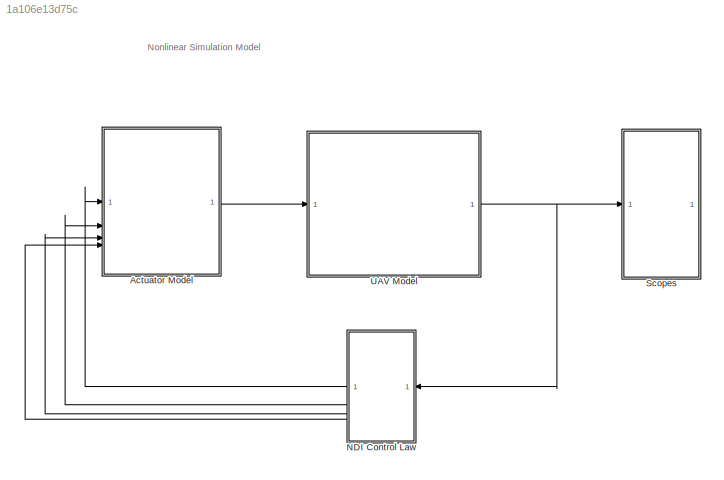
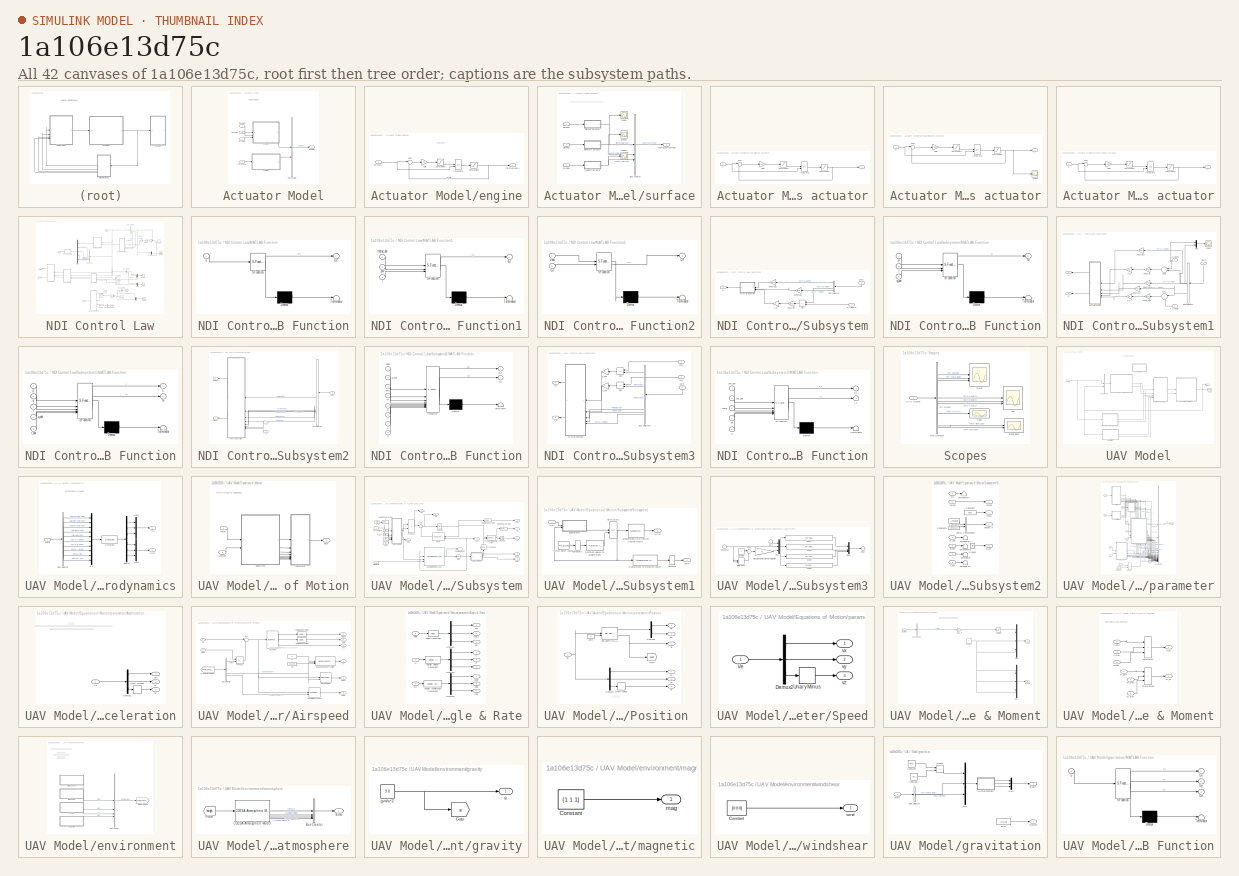
[diagram: thumbnail index - all 42 canvases of the model, root first then tree order]
MODEL slx_1a106e13d75c
KIND model
CONFIG AbsTol = auto
CONFIG EnableMultiTasking = off
CONFIG FixedStep = Step_Size
CONFIG MaxStep = auto
CONFIG MinStep = auto
CONFIG RelTol = 1e-3
CONFIG SampleTimeConstraint = Unconstrained
CONFIG SolverName = ode4
CONFIG StartTime = 0.0
CONFIG StopTime = 30
BLOCK [SubSystem] Actuator Model
BLOCK [BusCreator] Actuator Model/Bus Creator
  DisplayOption = bar
  InheritFromInputs = on
  Inputs = 2
BLOCK [Inport] Actuator Model/DT(100%)
  Port = 4
BLOCK [Inport] Actuator Model/Da(deg)
BLOCK [Inport] Actuator Model/De(deg)
  Port = 2
BLOCK [Inport] Actuator Model/Dr(deg)
  Port = 3
BLOCK [Outport] Actuator Model/actuator
BLOCK [SubSystem] Actuator Model/engine
BLOCK [Inport] Actuator Model/engine/DT(100%)
BLOCK [Gain] Actuator Model/engine/Gain
  Gain = 10
BLOCK [Integrator] Actuator Model/engine/Integrator
  InitialConditionSource = external
BLOCK [Saturate] Actuator Model/engine/Saturation1
  LowerLimit = -300
  UpperLimit = 300
BLOCK [Saturate] Actuator Model/engine/Saturation2
  LowerLimit = 0
  UpperLimit = 1
BLOCK [Sum] Actuator Model/engine/Sum
  Inputs = |+-
BLOCK [Outport] Actuator Model/engine/throttle(100%)
BLOCK [SubSystem] Actuator Model/surface
BLOCK [BusCreator] Actuator Model/surface/Bus Creator
  DisplayOption = bar
  InheritFromInputs = on
  Inputs = 3
BLOCK [Inport] Actuator Model/surface/Da(deg)
BLOCK [Inport] Actuator Model/surface/De(deg)
  Port = 2
BLOCK [Inport] Actuator Model/surface/Dr(deg)
  Port = 3
BLOCK [Scope] Actuator Model/surface/Scope
  Floating = off
  NumInputPorts = 1
  ScopeSpecificationString = Simulink.scopes.TimeScopeBlockCfg('CurrentConfiguration', extmgr.ConfigurationSet(extmgr.Configuration('Core','General UI',true),extmgr.Configuration('Core','Source UI',true),extmgr.Configuration('Sources','WiredSimulink',true,'DataLoggingVariableName','ScopeData10'),extmgr.Configuration('Visuals','Time Domain',true,'SerializedDisplays',{struct('MinYLimReal','-11.447','MaxYLimReal','0.7528','YLabe...<+1424ch>
BLOCK [Scope] Actuator Model/surface/Scope1
  Floating = off
  NumInputPorts = 1
  ScopeSpecificationString = Simulink.scopes.TimeScopeBlockCfg('CurrentConfiguration', extmgr.ConfigurationSet(extmgr.Configuration('Core','General UI',true),extmgr.Configuration('Core','Source UI',true),extmgr.Configuration('Sources','WiredSimulink',true,'DataLoggingVariableName','ScopeData11'),extmgr.Configuration('Visuals','Time Domain',true,'SerializedDisplays',{struct('MinYLimReal','-0.38414','MaxYLimReal','-0.22212','YL...<+1433ch>
BLOCK [Scope] Actuator Model/surface/Scope2
  Floating = off
  NumInputPorts = 1
  ScopeSpecificationString = Simulink.scopes.TimeScopeBlockCfg('CurrentConfiguration', extmgr.ConfigurationSet(extmgr.Configuration('Core','General UI',true),extmgr.Configuration('Core','Source UI',true),extmgr.Configuration('Sources','WiredSimulink',true,'DataLoggingVariableName','ScopeData12'),extmgr.Configuration('Visuals','Time Domain',true,'SerializedDisplays',{struct('MinYLimReal','-4.42561','MaxYLimReal','2.64604','YLa...<+1400ch>
BLOCK [SubSystem] Actuator Model/surface/ailerons actuator
BLOCK [Gain] Actuator Model/surface/ailerons actuator/Gain
  Gain = 100
BLOCK [Integrator] Actuator Model/surface/ailerons actuator/Integrator
  InitialConditionSource = external
BLOCK [Saturate] Actuator Model/surface/ailerons actuator/Saturation1
  LowerLimit = -300
  UpperLimit = 300
BLOCK [Saturate] Actuator Model/surface/ailerons actuator/Saturation2
  LowerLimit = -20
  UpperLimit = 20
BLOCK [Sum] Actuator Model/surface/ailerons actuator/Sum
  Inputs = |+-
BLOCK [Inport] Actuator Model/surface/ailerons actuator/X
BLOCK [Outport] Actuator Model/surface/ailerons actuator/Y
BLOCK [Outport] Actuator Model/surface/control_surface(deg)
BLOCK [SubSystem] Actuator Model/surface/elevators actuator
BLOCK [Gain] Actuator Model/surface/elevators actuator/Gain
  Gain = 100
BLOCK [Integrator] Actuator Model/surface/elevators actuator/Integrator
  InitialCondition = 0.811
  InitialConditionSource = external
BLOCK [Saturate] Actuator Model/surface/elevators actuator/Saturation1
  LowerLimit = -300
  UpperLimit = 300
BLOCK [Saturate] Actuator Model/surface/elevators actuator/Saturation2
  LowerLimit = -20
  UpperLimit = 20
BLOCK [Scope] Actuator Model/surface/elevators actuator/Scope
  Floating = off
  NumInputPorts = 1
  ScopeSpecificationString = C++SS(StrPVP('Location','[1, 53, 1441, 851]'),StrPVP('Open','off'),MxPVP('AxesTitles',54,'struct(''axes1'',''%<SignalLabel>'')'),MxPVP('ScopeGraphics',57,'struct(''FigureColor'',''[0.5 0.5 0.5]'',''AxesColor'',''[0 0 0]'',''AxesTickColor'',''[1 1 1]'',''LineColors'',''[1 1 0;1 0 1;0 1 1;1 0 0;0 1 0;0 0 1]'',''LineStyles'',''-|-|-|-|-|-'',''LineWidths'',''[0.5 0.5 0.5 0.5 0.5 0.5]'',''MarkerStyles'...<+269ch>
BLOCK [Sum] Actuator Model/surface/elevators actuator/Sum
  Inputs = |+-
BLOCK [Inport] Actuator Model/surface/elevators actuator/X
BLOCK [Outport] Actuator Model/surface/elevators actuator/Y
BLOCK [SubSystem] Actuator Model/surface/rudders actuator
BLOCK [Gain] Actuator Model/surface/rudders actuator/Gain
  Gain = 100
BLOCK [Integrator] Actuator Model/surface/rudders actuator/Integrator
  InitialConditionSource = external
BLOCK [Saturate] Actuator Model/surface/rudders actuator/Saturation1
  LowerLimit = -300
  UpperLimit = 300
BLOCK [Saturate] Actuator Model/surface/rudders actuator/Saturation2
  LowerLimit = -20
  UpperLimit = 20
BLOCK [Sum] Actuator Model/surface/rudders actuator/Sum
  Inputs = |+-
BLOCK [Inport] Actuator Model/surface/rudders actuator/X
BLOCK [Outport] Actuator Model/surface/rudders actuator/Y
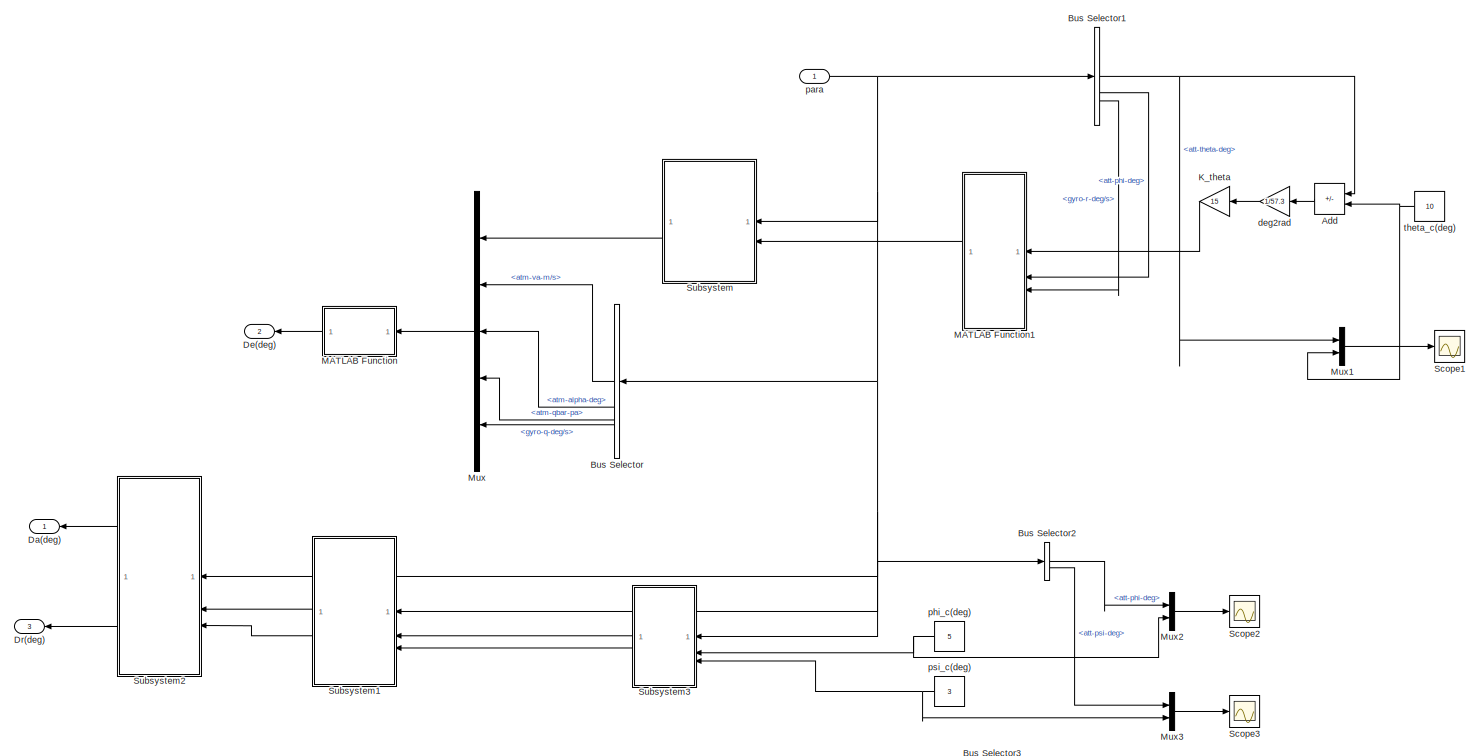
[diagram: NDI Control Law - part 1/2, full width, middle band]
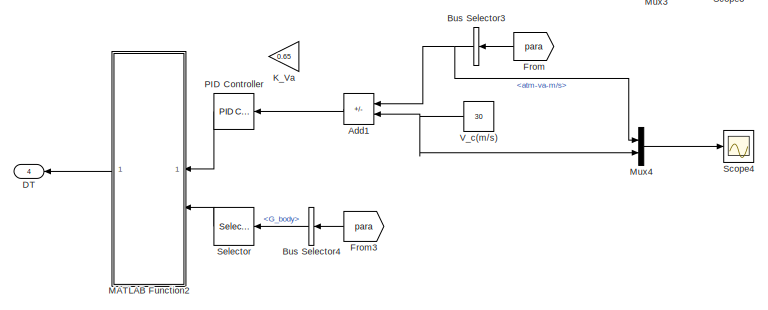
[diagram: NDI Control Law - part 2/2, bottom center region]
BLOCK [SubSystem] NDI Control Law
  NameLocation = top
BLOCK [Sum] NDI Control Law/Add
  IconShape = rectangular
  Inputs = -+
  NameLocation = top
BLOCK [Sum] NDI Control Law/Add1
  IconShape = rectangular
  Inputs = -+
  NameLocation = top
BLOCK [BusSelector] NDI Control Law/Bus Selector
  NameLocation = top
  OutputSignals = atm-va-m/s,atm-alpha-deg,atm-qbar-pa,gyro-q-deg/s
BLOCK [BusSelector] NDI Control Law/Bus Selector1
  OutputSignals = att-theta-deg,att-phi-deg,gyro-r-deg/s
BLOCK [BusSelector] NDI Control Law/Bus Selector2
  OutputSignals = att-phi-deg,att-psi-deg
BLOCK [BusSelector] NDI Control Law/Bus Selector3
  NameLocation = top
  OutputSignals = atm-va-m/s
BLOCK [BusSelector] NDI Control Law/Bus Selector4
  NameLocation = top
  OutputSignals = G_body
BLOCK [Outport] NDI Control Law/DT
  NameLocation = top
  Port = 4
BLOCK [Outport] NDI Control Law/Da(deg)
  NameLocation = top
BLOCK [Outport] NDI Control Law/De(deg)
  NameLocation = top
  Port = 2
BLOCK [Outport] NDI Control Law/Dr(deg)
  NameLocation = top
  Port = 3
BLOCK [From] NDI Control Law/From
  GotoTag = para
  NameLocation = top
  TagVisibility = global
BLOCK [From] NDI Control Law/From3
  GotoTag = para
  NameLocation = top
  TagVisibility = global
BLOCK [Gain] NDI Control Law/K_Va
  Commented = on
  Gain = 0.65
  NameLocation = top
BLOCK [Gain] NDI Control Law/K_theta
  Gain = 15
  NameLocation = top
BLOCK [SubSystem] NDI Control Law/MATLAB Function
  ErrorFcn = Stateflow.Translate.translate
  NameLocation = top
  PermitHierarchicalResolution = ExplicitOnly
  SFBlockType = MATLAB Function
  TreatAsAtomicUnit = on
BLOCK [Demux] NDI Control Law/MATLAB Function/ Demux 
  Outputs = 1
BLOCK [S-Function] NDI Control Law/MATLAB Function/ SFunction 
  EnableBusSupport = on
  FunctionName = sf_sfun
  PortCounts = [1 2]
  SFcnIsStateOwnerBlock = off
  SFunctionDeploymentMode = off
  Tag = Stateflow S-Function 7
BLOCK [Terminator] NDI Control Law/MATLAB Function/ Terminator 
BLOCK [Outport] NDI Control Law/MATLAB Function/De
BLOCK [Inport] NDI Control Law/MATLAB Function/u
BLOCK [SubSystem] NDI Control Law/MATLAB Function1
  ErrorFcn = Stateflow.Translate.translate
  NameLocation = top
  PermitHierarchicalResolution = ExplicitOnly
  SFBlockType = MATLAB Function
  TreatAsAtomicUnit = on
BLOCK [Demux] NDI Control Law/MATLAB Function1/ Demux 
  Outputs = 1
BLOCK [S-Function] NDI Control Law/MATLAB Function1/ SFunction 
  EnableBusSupport = on
  FunctionName = sf_sfun
  PortCounts = [3 2]
  SFcnIsStateOwnerBlock = off
  SFunctionDeploymentMode = off
  Tag = Stateflow S-Function 8
BLOCK [Terminator] NDI Control Law/MATLAB Function1/ Terminator 
BLOCK [Inport] NDI Control Law/MATLAB Function1/phi
  Port = 2
BLOCK [Outport] NDI Control Law/MATLAB Function1/q_c
BLOCK [Inport] NDI Control Law/MATLAB Function1/r
  Port = 3
BLOCK [Inport] NDI Control Law/MATLAB Function1/thetac_dot
BLOCK [SubSystem] NDI Control Law/MATLAB Function2
  ErrorFcn = Stateflow.Translate.translate
  NameLocation = top
  PermitHierarchicalResolution = ExplicitOnly
  SFBlockType = MATLAB Function
  TreatAsAtomicUnit = on
BLOCK [Demux] NDI Control Law/MATLAB Function2/ Demux 
  Outputs = 1
BLOCK [S-Function] NDI Control Law/MATLAB Function2/ SFunction 
  EnableBusSupport = on
  FunctionName = sf_sfun
  PortCounts = [2 2]
  SFcnIsStateOwnerBlock = off
  SFunctionDeploymentMode = off
  Tag = Stateflow S-Function 9
BLOCK [Terminator] NDI Control Law/MATLAB Function2/ Terminator 
BLOCK [Outport] NDI Control Law/MATLAB Function2/DT
BLOCK [Inport] NDI Control Law/MATLAB Function2/Gx
  Port = 2
BLOCK [Inport] NDI Control Law/MATLAB Function2/Vdot
BLOCK [Mux] NDI Control Law/Mux
  DisplayOption = bar
  Inputs = 5
  NameLocation = top
BLOCK [Mux] NDI Control Law/Mux1
  DisplayOption = bar
  Inputs = 2
BLOCK [Mux] NDI Control Law/Mux2
  DisplayOption = bar
  Inputs = 2
BLOCK [Mux] NDI Control Law/Mux3
  DisplayOption = bar
  Inputs = 2
BLOCK [Mux] NDI Control Law/Mux4
  DisplayOption = bar
  Inputs = 2
BLOCK [Reference] NDI Control Law/PID Controller  REF=slpidlib/PID Controller
  LibrarySourceBlock = simulink/Continuous/PID Controller
  NameLocation = top
  SourceBlock = slpidlib/PID Controller
  SourceType = PID 1dof
BLOCK [Scope] NDI Control Law/Scope1
  Floating = off
  NumInputPorts = 1
  ScopeSpecificationString = Simulink.scopes.TimeScopeBlockCfg('CurrentConfiguration', extmgr.ConfigurationSet(extmgr.Configuration('Core','General UI',true),extmgr.Configuration('Core','Source UI',true),extmgr.Configuration('Sources','WiredSimulink',true,'DataLoggingVariableName','ScopeData4','DataLoggingSaveFormat','StructureWithTime','DataLoggingLimitDataPoints',true,'DataLoggingDecimation','1','DataLoggingDecimateData',tr...<+1753ch>
BLOCK [Scope] NDI Control Law/Scope2
  Floating = off
  NumInputPorts = 1
  ScopeSpecificationString = Simulink.scopes.TimeScopeBlockCfg('CurrentConfiguration', extmgr.ConfigurationSet(extmgr.Configuration('Core','General UI',true),extmgr.Configuration('Core','Source UI',true),extmgr.Configuration('Sources','WiredSimulink',true,'DataLoggingVariableName','ScopeData5','DataLoggingSaveFormat','StructureWithTime','DataLoggingLimitDataPoints',true,'DataLoggingDecimation','1','DataLoggingDecimateData',tr...<+1700ch>
BLOCK [Scope] NDI Control Law/Scope3
  Floating = off
  NumInputPorts = 1
  ScopeSpecificationString = Simulink.scopes.TimeScopeBlockCfg('CurrentConfiguration', extmgr.ConfigurationSet(extmgr.Configuration('Core','General UI',true),extmgr.Configuration('Core','Source UI',true),extmgr.Configuration('Sources','WiredSimulink',true,'DataLoggingVariableName','ScopeData6','DataLoggingSaveFormat','StructureWithTime','DataLoggingLimitDataPoints',true,'DataLoggingDecimation','1','DataLoggingDecimateData',tr...<+1725ch>
BLOCK [Scope] NDI Control Law/Scope4
  Floating = off
  NumInputPorts = 1
  ScopeSpecificationString = Simulink.scopes.TimeScopeBlockCfg('CurrentConfiguration', extmgr.ConfigurationSet(extmgr.Configuration('Core','General UI',true),extmgr.Configuration('Core','Source UI',true),extmgr.Configuration('Sources','WiredSimulink',true,'DataLoggingVariableName','ScopeData7','DataLoggingSaveFormat','StructureWithTime','DataLoggingDecimation','1','DataLoggingDecimateData',true),extmgr.Configuration('Visuals'...<+1731ch>
BLOCK [Selector] NDI Control Law/Selector
  IndexOptions = Index vector (dialog)
  Indices = 1
  InputPortWidth = 3
  NameLocation = top
  OutputSizes = 1
BLOCK [SubSystem] NDI Control Law/Subsystem
  NameLocation = top
BLOCK [Sum] NDI Control Law/Subsystem/Add
  IconShape = rectangular
  Inputs = -+
  NameLocation = top
BLOCK [BusSelector] NDI Control Law/Subsystem/Bus Selector
  NameLocation = top
  OutputSignals = gyro-p-deg/s,gyro-q-deg/s,gyro-r-deg/s
BLOCK [Gain] NDI Control Law/Subsystem/K_q
  Gain = 5
  NameLocation = top
BLOCK [Outport] NDI Control Law/Subsystem/M
  NameLocation = top
BLOCK [SubSystem] NDI Control Law/Subsystem/MATLAB Function
  ErrorFcn = Stateflow.Translate.translate
  NameLocation = top
  PermitHierarchicalResolution = ExplicitOnly
  SFBlockType = MATLAB Function
  TreatAsAtomicUnit = on
BLOCK [Demux] NDI Control Law/Subsystem/MATLAB Function/ Demux 
  Outputs = 1
BLOCK [S-Function] NDI Control Law/Subsystem/MATLAB Function/ SFunction 
  EnableBusSupport = on
  FunctionName = sf_sfun
  PortCounts = [3 2]
  SFcnIsStateOwnerBlock = off
  SFunctionDeploymentMode = off
  Tag = Stateflow S-Function 10
BLOCK [Terminator] NDI Control Law/Subsystem/MATLAB Function/ Terminator 
BLOCK [Outport] NDI Control Law/Subsystem/MATLAB Function/M
BLOCK [Inport] NDI Control Law/Subsystem/MATLAB Function/p
BLOCK [Inport] NDI Control Law/Subsystem/MATLAB Function/q_dot
  Port = 3
BLOCK [Inport] NDI Control Law/Subsystem/MATLAB Function/r
  Port = 2
BLOCK [Gain] NDI Control Law/Subsystem/deg2rad
  Gain = 1/57.3
  NameLocation = top
BLOCK [Gain] NDI Control Law/Subsystem/deg2rad1
  Gain = 1/57.3
  NameLocation = top
BLOCK [Gain] NDI Control Law/Subsystem/deg2rad2
  Gain = 1/57.3
  NameLocation = top
BLOCK [Inport] NDI Control Law/Subsystem/para
  NameLocation = right
BLOCK [Inport] NDI Control Law/Subsystem/q_c(deg//s)
  NameLocation = top
  Port = 2
BLOCK [SubSystem] NDI Control Law/Subsystem1
  NameLocation = top
BLOCK [BusSelector] NDI Control Law/Subsystem1/Bus Selector2
  NameLocation = top
  OutputSignals = gyro-p-deg/s,gyro-q-deg/s,gyro-r-deg/s
BLOCK [Gain] NDI Control Law/Subsystem1/K_p
  Gain = 15
  NameLocation = top
BLOCK [Gain] NDI Control Law/Subsystem1/K_r
  Gain = 15
  NameLocation = top
BLOCK [Outport] NDI Control Law/Subsystem1/L
  NameLocation = top
BLOCK [SubSystem] NDI Control Law/Subsystem1/MATLAB Function
  ErrorFcn = Stateflow.Translate.translate
  NameLocation = top
  PermitHierarchicalResolution = ExplicitOnly
  SFBlockType = MATLAB Function
  TreatAsAtomicUnit = on
BLOCK [Demux] NDI Control Law/Subsystem1/MATLAB Function/ Demux 
  Outputs = 1
BLOCK [S-Function] NDI Control Law/Subsystem1/MATLAB Function/ SFunction 
  EnableBusSupport = on
  FunctionName = sf_sfun
  PortCounts = [5 3]
  SFcnIsStateOwnerBlock = off
  SFunctionDeploymentMode = off
  Tag = Stateflow S-Function 11
BLOCK [Terminator] NDI Control Law/Subsystem1/MATLAB Function/ Terminator 
BLOCK [Outport] NDI Control Law/Subsystem1/MATLAB Function/L
BLOCK [Outport] NDI Control Law/Subsystem1/MATLAB Function/N
  Port = 2
BLOCK [Inport] NDI Control Law/Subsystem1/MATLAB Function/p
BLOCK [Inport] NDI Control Law/Subsystem1/MATLAB Function/p_dot
  Port = 4
BLOCK [Inport] NDI Control Law/Subsystem1/MATLAB Function/q
  Port = 2
BLOCK [Inport] NDI Control Law/Subsystem1/MATLAB Function/r
  Port = 3
BLOCK [Inport] NDI Control Law/Subsystem1/MATLAB Function/r_dot
  Port = 5
BLOCK [Mux] NDI Control Law/Subsystem1/Mux
  DisplayOption = bar
  Inputs = 2
BLOCK [Outport] NDI Control Law/Subsystem1/N
  NameLocation = top
  Port = 2
BLOCK [Scope] NDI Control Law/Subsystem1/Scope
  Floating = off
  NumInputPorts = 1
  ScopeSpecificationString = C++SS(StrPVP('Location','[1, 49, 1921, 1039]'),StrPVP('Open','off'),MxPVP('AxesTitles',54,'struct(''axes1'',''%<SignalLabel>'')'),MxPVP('ScopeGraphics',57,'struct(''FigureColor'',''[0.5 0.5 0.5]'',''AxesColor'',''[0 0 0]'',''AxesTickColor'',''[1 1 1]'',''LineColors'',''[1 1 0;1 0 1;0 1 1;1 0 0;0 1 0;0 0 1]'',''LineStyles'',''-|-|-|-|-|-'',''LineWidths'',''[0.5 0.5 0.5 0.5 0.5 0.5]'',''MarkerStyles...<+223ch>
BLOCK [Sum] NDI Control Law/Subsystem1/Sum
  Inputs = |-+
  NameLocation = top
BLOCK [Sum] NDI Control Law/Subsystem1/Sum1
  Inputs = |+-||
  NameLocation = top
BLOCK [Gain] NDI Control Law/Subsystem1/deg2rad
  Gain = 1/57.3
  NameLocation = top
BLOCK [Gain] NDI Control Law/Subsystem1/deg2rad1
  Gain = 1/57.3
  NameLocation = top
BLOCK [Gain] NDI Control Law/Subsystem1/deg2rad2
  Gain = 1/57.3
  NameLocation = top
BLOCK [Gain] NDI Control Law/Subsystem1/deg2rad3
  Gain = 1/57.3
  NameLocation = top
BLOCK [Gain] NDI Control Law/Subsystem1/deg2rad4
  Gain = 1/57.3
  NameLocation = top
BLOCK [Inport] NDI Control Law/Subsystem1/p_c(deg//s)
  NameLocation = top
  Port = 2
BLOCK [Inport] NDI Control Law/Subsystem1/para
  NameLocation = right
BLOCK [Inport] NDI Control Law/Subsystem1/r_c(deg//s)
  NameLocation = top
  Port = 3
BLOCK [SubSystem] NDI Control Law/Subsystem2
BLOCK [BusSelector] NDI Control Law/Subsystem2/Bus Selector2
  NameLocation = top
  OutputSignals = atm-qbar-pa,atm-alpha-deg,atm-beta-deg,atm-va-m/s,gyro-p-deg/s,gyro-r-deg/s
BLOCK [Outport] NDI Control Law/Subsystem2/Da(deg)
  NameLocation = top
BLOCK [Outport] NDI Control Law/Subsystem2/Dr(deg)
  NameLocation = top
  Port = 2
BLOCK [Inport] NDI Control Law/Subsystem2/L
  Port = 2
BLOCK [SubSystem] NDI Control Law/Subsystem2/MATLAB Function
  ErrorFcn = Stateflow.Translate.translate
  NameLocation = top
  PermitHierarchicalResolution = ExplicitOnly
  SFBlockType = MATLAB Function
  TreatAsAtomicUnit = on
BLOCK [Demux] NDI Control Law/Subsystem2/MATLAB Function/ Demux 
  Outputs = 1
BLOCK [S-Function] NDI Control Law/Subsystem2/MATLAB Function/ SFunction 
  EnableBusSupport = on
  FunctionName = sf_sfun
  PortCounts = [8 3]
  SFcnIsStateOwnerBlock = off
  SFunctionDeploymentMode = off
  Tag = Stateflow S-Function 12
BLOCK [Terminator] NDI Control Law/Subsystem2/MATLAB Function/ Terminator 
BLOCK [Outport] NDI Control Law/Subsystem2/MATLAB Function/Da
BLOCK [Outport] NDI Control Law/Subsystem2/MATLAB Function/Dr
  Port = 2
BLOCK [Inport] NDI Control Law/Subsystem2/MATLAB Function/L
  Port = 7
BLOCK [Inport] NDI Control Law/Subsystem2/MATLAB Function/N
  Port = 8
BLOCK [Inport] NDI Control Law/Subsystem2/MATLAB Function/alpha
  Port = 2
BLOCK [Inport] NDI Control Law/Subsystem2/MATLAB Function/beta
  Port = 3
BLOCK [Inport] NDI Control Law/Subsystem2/MATLAB Function/p
  Port = 5
BLOCK [Inport] NDI Control Law/Subsystem2/MATLAB Function/qbar
BLOCK [Inport] NDI Control Law/Subsystem2/MATLAB Function/r
  Port = 6
BLOCK [Inport] NDI Control Law/Subsystem2/MATLAB Function/va
  Port = 4
BLOCK [Inport] NDI Control Law/Subsystem2/N
  Port = 3
BLOCK [Inport] NDI Control Law/Subsystem2/para
BLOCK [SubSystem] NDI Control Law/Subsystem3
BLOCK [Sum] NDI Control Law/Subsystem3/Add
  IconShape = rectangular
  Inputs = +-
  NameLocation = top
BLOCK [Sum] NDI Control Law/Subsystem3/Add1
  IconShape = rectangular
  Inputs = +-
  NameLocation = top
BLOCK [BusSelector] NDI Control Law/Subsystem3/Bus Selector2
  NameLocation = top
  OutputSignals = att-phi-deg,att-psi-deg,att-theta-deg,att-phi-deg,gyro-q-deg/s
BLOCK [Gain] NDI Control Law/Subsystem3/K_phi
  Gain = 3
  NameLocation = top
BLOCK [Gain] NDI Control Law/Subsystem3/K_psi
  Gain = 3
  NameLocation = top
BLOCK [SubSystem] NDI Control Law/Subsystem3/MATLAB Function
  ErrorFcn = Stateflow.Translate.translate
  NameLocation = top
  PermitHierarchicalResolution = ExplicitOnly
  SFBlockType = MATLAB Function
  TreatAsAtomicUnit = on
BLOCK [Demux] NDI Control Law/Subsystem3/MATLAB Function/ Demux 
  Outputs = 1
BLOCK [S-Function] NDI Control Law/Subsystem3/MATLAB Function/ SFunction 
  EnableBusSupport = on
  FunctionName = sf_sfun
  PortCounts = [5 3]
  SFcnIsStateOwnerBlock = off
  SFunctionDeploymentMode = off
  Tag = Stateflow S-Function 13
BLOCK [Terminator] NDI Control Law/Subsystem3/MATLAB Function/ Terminator 
BLOCK [Outport] NDI Control Law/Subsystem3/MATLAB Function/p_c
BLOCK [Inport] NDI Control Law/Subsystem3/MATLAB Function/phi
  Port = 4
BLOCK [Inport] NDI Control Law/Subsystem3/MATLAB Function/phi_dot
BLOCK [Inport] NDI Control Law/Subsystem3/MATLAB Function/psi_dot
  Port = 2
BLOCK [Inport] NDI Control Law/Subsystem3/MATLAB Function/q
  Port = 5
BLOCK [Outport] NDI Control Law/Subsystem3/MATLAB Function/r_c
  Port = 2
BLOCK [Inport] NDI Control Law/Subsystem3/MATLAB Function/theta
  Port = 3
BLOCK [Outport] NDI Control Law/Subsystem3/p_c
  NameLocation = top
BLOCK [Inport] NDI Control Law/Subsystem3/para
  NameLocation = right
BLOCK [Inport] NDI Control Law/Subsystem3/phi_c
  NameLocation = top
  Port = 2
BLOCK [Inport] NDI Control Law/Subsystem3/psi_c
  NameLocation = top
  Port = 3
BLOCK [Outport] NDI Control Law/Subsystem3/r_c
  NameLocation = top
  Port = 2
BLOCK [Constant] NDI Control Law/V_c(m//s)
  NameLocation = top
  Value = 30
BLOCK [Gain] NDI Control Law/deg2rad
  Gain = 1/57.3
  NameLocation = top
BLOCK [Inport] NDI Control Law/para
BLOCK [Constant] NDI Control Law/phi_c(deg)
  NameLocation = top
  Value = 5
BLOCK [Constant] NDI Control Law/psi_c(deg)
  NameLocation = top
  Value = 3
BLOCK [Constant] NDI Control Law/theta_c(deg)
  NameLocation = top
  Value = 10
BLOCK [SubSystem] Scopes
BLOCK [BusSelector] Scopes/Bus Selector
  OutputSignals = att-phi-deg,att-theta-deg,att-psi-deg,gyro-p-deg/s,gyro-q-deg/s,gyro-r-deg/s,atm-va-m/s,atm-alpha-deg,atm-beta-deg
BLOCK [Scope] Scopes/Euler
  Floating = off
  NumInputPorts = 3
  ScopeSpecificationString = Simulink.scopes.TimeScopeBlockCfg('CurrentConfiguration', extmgr.ConfigurationSet(extmgr.Configuration('Core','General UI',true),extmgr.Configuration('Core','Source UI',true),extmgr.Configuration('Sources','WiredSimulink',true,'DataLoggingVariableName','ScopeData1'),extmgr.Configuration('Visuals','Time Domain',true,'SerializedDisplays',{struct('MinYLimReal','-1.24984','MaxYLimReal','11.24857','YLa...<+1490ch>
BLOCK [Inport] Scopes/UAS States
BLOCK [Scope] Scopes/Vabs
  Floating = off
  NumInputPorts = 1
  ScopeSpecificationString = Simulink.scopes.TimeScopeBlockCfg('CurrentConfiguration', extmgr.ConfigurationSet(extmgr.Configuration('Core','General UI',true),extmgr.Configuration('Core','Source UI',true),extmgr.Configuration('Sources','WiredSimulink',true,'DataLoggingVariableName','ScopeData3'),extmgr.Configuration('Visuals','Time Domain',true,'SerializedDisplays',{struct('MinYLimReal','17.23396','MaxYLimReal','32.5312','YLab...<+1473ch>
BLOCK [Scope] Scopes/alpha_beta
  Floating = off
  NumInputPorts = 2
  ScopeSpecificationString = Simulink.scopes.TimeScopeBlockCfg('CurrentConfiguration', extmgr.ConfigurationSet(extmgr.Configuration('Core','General UI',true),extmgr.Configuration('Core','Source UI',true),extmgr.Configuration('Sources','WiredSimulink',true,'DataLoggingVariableName','ScopeData9'),extmgr.Configuration('Visuals','Time Domain',true,'SerializedDisplays',{struct('MinYLimReal','-2.51122','MaxYLimReal','13.8307','YLab...<+1461ch>
BLOCK [Scope] Scopes/pqr
  Floating = off
  NumInputPorts = 3
  ScopeSpecificationString = Simulink.scopes.TimeScopeBlockCfg('CurrentConfiguration', extmgr.ConfigurationSet(extmgr.Configuration('Core','General UI',true),extmgr.Configuration('Core','Source UI',true),extmgr.Configuration('Sources','WiredSimulink',true,'DataLoggingVariableName','ScopeData2'),extmgr.Configuration('Visuals','Time Domain',true,'SerializedDisplays',{struct('MinYLimReal','-1.50808','MaxYLimReal','12.71203','YLa...<+1510ch>
BLOCK [SubSystem] UAV Model
BLOCK [SubSystem] UAV Model/Aerodynamics
BLOCK [BusSelector] UAV Model/Aerodynamics/Bus Selector
  OutputSignals = actuator.control_surface.AileronAngle-deg,actuator.control_surface.ElevatorAngle-deg,actuator.control_surface.RudderAngle-deg,para.atm-alpha-deg,para.atm-beta-deg,para.gyro-p-deg/s,para.gyro-q-deg/s,para.gyro-r-deg/s,para.atm-va-m/s,para.atm-qbar-pa
BLOCK [Demux] UAV Model/Aerodynamics/Demux
  Outputs = 6
BLOCK [Mux] UAV Model/Aerodynamics/Mux
  DisplayOption = bar
  Inputs = 10
BLOCK [Mux] UAV Model/Aerodynamics/Mux1
  DisplayOption = bar
  Inputs = 3
BLOCK [Mux] UAV Model/Aerodynamics/Mux2
  DisplayOption = bar
  Inputs = 3
BLOCK [S-Function] UAV Model/Aerodynamics/S-Function
  EnableBusSupport = off
  FunctionName = Canard_aero
  SFcnIsStateOwnerBlock = off
  SFunctionDeploymentMode = off
BLOCK [Outport] UAV Model/Aerodynamics/fxyz
BLOCK [Outport] UAV Model/Aerodynamics/mxyz
  Port = 2
BLOCK [Inport] UAV Model/Aerodynamics/state
BLOCK [BusCreator] UAV Model/Bus Creator
  DisplayOption = bar
  InheritFromInputs = on
  Inputs = 2
BLOCK [Inport] UAV Model/Controls
BLOCK [SubSystem] UAV Model/Equations of Motion
BLOCK [Inport] UAV Model/Equations of Motion/Force
  PortDimensions = 3
BLOCK [Inport] UAV Model/Equations of Motion/Moment
  Port = 2
  PortDimensions = 3
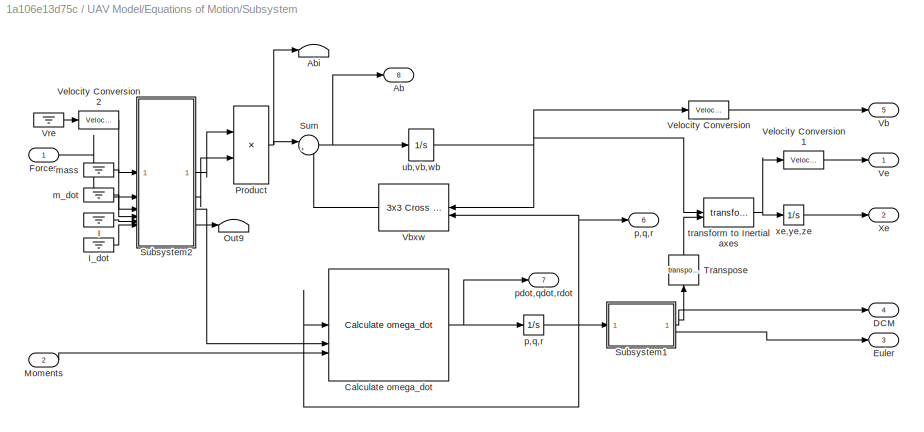
BLOCK [SubSystem] UAV Model/Equations of Motion/Subsystem
BLOCK [Outport] UAV Model/Equations of Motion/Subsystem/Ab
  OutDataTypeStr = double
  Port = 8
  Unit = m/s^2
  VectorParamsAs1DForOutWhenUnconnected = off
BLOCK [Terminator] UAV Model/Equations of Motion/Subsystem/Abi
BLOCK [Reference] UAV Model/Equations of Motion/Subsystem/Calculate omega_dot  REF=shared6dofsys/Calculate omega_dot  (lib defined in slx_91fbb8bad28b)
  SourceBlock = shared6dofsys/Calculate omega_dot
BLOCK [Outport] UAV Model/Equations of Motion/Subsystem/DCM
  OutDataTypeStr = double
  Port = 4
  Unit = 1
  VectorParamsAs1DForOutWhenUnconnected = off
BLOCK [Outport] UAV Model/Equations of Motion/Subsystem/Euler
  OutDataTypeStr = double
  Port = 3
  Unit = rad
  VectorParamsAs1DForOutWhenUnconnected = off
BLOCK [Inport] UAV Model/Equations of Motion/Subsystem/Forces
  OutDataTypeStr = double
  PortDimensions = 3
  Unit = N
BLOCK [Ground] UAV Model/Equations of Motion/Subsystem/I
BLOCK [Ground] UAV Model/Equations of Motion/Subsystem/I_dot
BLOCK [Inport] UAV Model/Equations of Motion/Subsystem/Moments
  OutDataTypeStr = double
  Port = 2
  PortDimensions = 3
  Unit = N*m
BLOCK [Terminator] UAV Model/Equations of Motion/Subsystem/Out9
BLOCK [Product] UAV Model/Equations of Motion/Subsystem/Product
  Inputs = */
  OutDataTypeStr = Inherit: Same as first input
  SaturateOnIntegerOverflow = on
BLOCK [SubSystem] UAV Model/Equations of Motion/Subsystem/Subsystem1
BLOCK [Outport] UAV Model/Equations of Motion/Subsystem/Subsystem1/DCM
  OutDataTypeStr = double
  VectorParamsAs1DForOutWhenUnconnected = off
BLOCK [Outport] UAV Model/Equations of Motion/Subsystem/Subsystem1/Euler
  OutDataTypeStr = double
  Port = 2
  VectorParamsAs1DForOutWhenUnconnected = off
BLOCK [Constant] UAV Model/Equations of Motion/Subsystem/Subsystem1/Initial Euler Angles
  Value = Init_Euler
BLOCK [Reference] UAV Model/Equations of Motion/Subsystem/Subsystem1/Quaternions to Direction Cosine Matrix  REF=sharedtransform/Quaternions to 
Direction Cosine Matrix
  SourceBlock = sharedtransform/Quaternions to \nDirection Cosine Matrix
  SourceType = Quaternion2DCM
BLOCK [Reference] UAV Model/Equations of Motion/Subsystem/Subsystem1/Quaternions to Rotation Angles  REF=sharedtransform/Quaternions to Rotation Angles
  AttributesFormatString = Rotation Order: %<rotationOrder>
  SourceBlock = sharedtransform/Quaternions to Rotation Angles
  SourceType = Quat2Ang
BLOCK [Reference] UAV Model/Equations of Motion/Subsystem/Subsystem1/Rotation Angles to Quaternions  REF=sharedtransform/Rotation Angles to Quaternions
  AttributesFormatString = Rotation Order: %<rotationOrder>
  SourceBlock = sharedtransform/Rotation Angles to Quaternions
  SourceType = Ang2Quat
BLOCK [Selector] UAV Model/Equations of Motion/Subsystem/Subsystem1/Selector
  IndexOptions = Index vector (dialog)
  Indices = [3 2 1]
  InputPortWidth = 3
  NameLocation = top
  OutputSizes = 1
BLOCK [Selector] UAV Model/Equations of Motion/Subsystem/Subsystem1/Selector1
  IndexOptions = Index vector (dialog)
  Indices = [3 2 1]
  InputPortWidth = 3
  NameLocation = top
  OutputSizes = 1
BLOCK [SubSystem] UAV Model/Equations of Motion/Subsystem/Subsystem1/Subsystem3
BLOCK [Constant] UAV Model/Equations of Motion/Subsystem/Subsystem1/Subsystem3/Constant
BLOCK [DotProduct] UAV Model/Equations of Motion/Subsystem/Subsystem1/Subsystem3/Dot Product
  InputSameDT = off
  OutDataTypeStr = Inherit: Inherit via internal rule
BLOCK [Gain] UAV Model/Equations of Motion/Subsystem/Subsystem1/Subsystem3/High Gain Quaternion Normalization
  OutDataTypeStr = Inherit: Same as input
  ParamDataTypeStr = Inherit: Same as input
  SaturateOnIntegerOverflow = on
BLOCK [Mux] UAV Model/Equations of Motion/Subsystem/Subsystem1/Subsystem3/Mux1
  DisplayOption = bar
  Inputs = [3 4 1]
BLOCK [Mux] UAV Model/Equations of Motion/Subsystem/Subsystem1/Subsystem3/Mux2
  DisplayOption = bar
BLOCK [Sum] UAV Model/Equations of Motion/Subsystem/Subsystem1/Subsystem3/Sum
  InputSameDT = on
  Inputs = |+-
  OutDataTypeStr = Inherit: Same as first input
  SaturateOnIntegerOverflow = on
BLOCK [Inport] UAV Model/Equations of Motion/Subsystem/Subsystem1/Subsystem3/p q r1
  NameLocation = top
BLOCK [Inport] UAV Model/Equations of Motion/Subsystem/Subsystem1/Subsystem3/q0 q1 q2 q3
  Port = 2
BLOCK [Fcn] UAV Model/Equations of Motion/Subsystem/Subsystem1/Subsystem3/q0dot
  Expr = -0.5 * ( u[5]*u[1]+u[6]*u[2]+u[7]*u[3] ) + u[8]*u[4]
BLOCK [Fcn] UAV Model/Equations of Motion/Subsystem/Subsystem1/Subsystem3/q1dot
  Expr = 0.5 * ( u[4]*u[1]+u[6]*u[3]-u[7]*u[2] ) + u[8]*u[5]
BLOCK [Fcn] UAV Model/Equations of Motion/Subsystem/Subsystem1/Subsystem3/q2dot
  Expr = 0.5 * ( u[4]*u[2]+u[7]*u[1]-u[5]*u[3] ) + u[8]*u[6]
BLOCK [Fcn] UAV Model/Equations of Motion/Subsystem/Subsystem1/Subsystem3/q3dot
  Expr = 0.5 * ( u[4]*u[3]+u[5]*u[2]-u[6]*u[1] ) + u[8]*u[7]
BLOCK [Outport] UAV Model/Equations of Motion/Subsystem/Subsystem1/Subsystem3/qdot
  InitialOutput = 0
  VectorParamsAs1DForOutWhenUnconnected = off
BLOCK [Inport] UAV Model/Equations of Motion/Subsystem/Subsystem1/p q r
  OutDataTypeStr = double
BLOCK [Integrator] UAV Model/Equations of Motion/Subsystem/Subsystem1/q0 q1 q2 q3
  InitialCondition = [e0_0 e1_0 e2_0 e3_0]
  InitialConditionSource = external
BLOCK [SubSystem] UAV Model/Equations of Motion/Subsystem/Subsystem2
BLOCK [Constant] UAV Model/Equations of Motion/Subsystem/Subsystem2/Constant
  OutDataTypeStr = Inherit: Inherit via back propagation
  Value = Mass
BLOCK [Constant] UAV Model/Equations of Motion/Subsystem/Subsystem2/Constant1
  OutDataTypeStr = Inherit: Inherit via back propagation
  Value = I_TENSOR
BLOCK [Constant] UAV Model/Equations of Motion/Subsystem/Subsystem2/Constant2
  Value = zeros(3)
BLOCK [Ground] UAV Model/Equations of Motion/Subsystem/Subsystem2/Ground
BLOCK [Inport] UAV Model/Equations of Motion/Subsystem/Subsystem2/I
  OutDataTypeStr = double
  Port = 5
BLOCK [Inport] UAV Model/Equations of Motion/Subsystem/Subsystem2/I_dot
  OutDataTypeStr = double
  Port = 6
BLOCK [Outport] UAV Model/Equations of Motion/Subsystem/Subsystem2/Out9
  OutDataTypeStr = double
  Port = 4
  VectorParamsAs1DForOutWhenUnconnected = off
BLOCK [Terminator] UAV Model/Equations of Motion/Subsystem/Subsystem2/Terminator
BLOCK [Terminator] UAV Model/Equations of Motion/Subsystem/Subsystem2/Terminator1
BLOCK [Terminator] UAV Model/Equations of Motion/Subsystem/Subsystem2/Terminator2
BLOCK [Terminator] UAV Model/Equations of Motion/Subsystem/Subsystem2/Terminator3
BLOCK [Terminator] UAV Model/Equations of Motion/Subsystem/Subsystem2/Terminator4
BLOCK [Concatenate] UAV Model/Equations of Motion/Subsystem/Subsystem2/Vector Concatenate
  Mode = Multidimensional array
BLOCK [Inport] UAV Model/Equations of Motion/Subsystem/Subsystem2/Vre
  OutDataTypeStr = double
BLOCK [Inport] UAV Model/Equations of Motion/Subsystem/Subsystem2/forces
  OutDataTypeStr = double
  Port = 2
BLOCK [Outport] UAV Model/Equations of Motion/Subsystem/Subsystem2/forces 
  OutDataTypeStr = double
  VectorParamsAs1DForOutWhenUnconnected = off
BLOCK [Outport] UAV Model/Equations of Motion/Subsystem/Subsystem2/inertia, 0
  OutDataTypeStr = double
  Port = 3
  VectorParamsAs1DForOutWhenUnconnected = off
BLOCK [Inport] UAV Model/Equations of Motion/Subsystem/Subsystem2/m_dot
  OutDataTypeStr = double
  Port = 4
BLOCK [Outport] UAV Model/Equations of Motion/Subsystem/Subsystem2/mass
  OutDataTypeStr = double
  Port = 2
  VectorParamsAs1DForOutWhenUnconnected = off
BLOCK [Inport] UAV Model/Equations of Motion/Subsystem/Subsystem2/mass 
  OutDataTypeStr = double
  Port = 3
BLOCK [Sum] UAV Model/Equations of Motion/Subsystem/Sum
  Inputs = |++
  SaturateOnIntegerOverflow = on
BLOCK [Math] UAV Model/Equations of Motion/Subsystem/Transpose
  NameLocation = right
  Operator = transpose
  SignedPower = on
BLOCK [Outport] UAV Model/Equations of Motion/Subsystem/Vb
  OutDataTypeStr = double
  Port = 5
  Unit = m/s
  VectorParamsAs1DForOutWhenUnconnected = off
BLOCK [Reference] UAV Model/Equations of Motion/Subsystem/Vbxw  REF=sharedutil/3x3 Cross Product
  SourceBlock = sharedutil/3x3 Cross Product
  SourceType = CrossProduct
BLOCK [Outport] UAV Model/Equations of Motion/Subsystem/Ve
  OutDataTypeStr = double
  Unit = m/s
  VectorParamsAs1DForOutWhenUnconnected = off
BLOCK [Reference] UAV Model/Equations of Motion/Subsystem/Velocity Conversion  REF=shared6dof/6DOF (Euler Angles)/Velocity Conversion
  SourceBlock = shared6dof/6DOF (Euler Angles)/Velocity Conversion
  SourceType = SubSystem
BLOCK [Reference] UAV Model/Equations of Motion/Subsystem/Velocity Conversion1  REF=shared6dof/6DOF (Euler Angles)/Velocity Conversion1
  SourceBlock = shared6dof/6DOF (Euler Angles)/Velocity Conversion1
  SourceType = SubSystem
BLOCK [Reference] UAV Model/Equations of Motion/Subsystem/Velocity Conversion2  REF=shared6dof/6DOF (Euler Angles)/Velocity Conversion2
  SourceBlock = shared6dof/6DOF (Euler Angles)/Velocity Conversion2
  SourceType = SubSystem
BLOCK [Ground] UAV Model/Equations of Motion/Subsystem/Vre
BLOCK [Outport] UAV Model/Equations of Motion/Subsystem/Xe
  OutDataTypeStr = double
  Port = 2
  Unit = m
  VectorParamsAs1DForOutWhenUnconnected = off
BLOCK [Ground] UAV Model/Equations of Motion/Subsystem/m_dot
BLOCK [Ground] UAV Model/Equations of Motion/Subsystem/mass
BLOCK [Outport] UAV Model/Equations of Motion/Subsystem/p,q,r
  OutDataTypeStr = double
  Port = 6
  Unit = rad/s
  VectorParamsAs1DForOutWhenUnconnected = off
BLOCK [Integrator] UAV Model/Equations of Motion/Subsystem/p,q,r 
  InitialCondition = Init_Rate
BLOCK [Outport] UAV Model/Equations of Motion/Subsystem/pdot,qdot,rdot
  OutDataTypeStr = double
  Port = 7
  Unit = rad/s^2
  VectorParamsAs1DForOutWhenUnconnected = off
BLOCK [Reference] UAV Model/Equations of Motion/Subsystem/transform to Inertial axes   REF=shared6dof/6DOF (Euler Angles)/transform to
Inertial axes 
  SourceBlock = shared6dof/6DOF (Euler Angles)/transform to\nInertial axes
  SourceType = Vector Transformation
BLOCK [Integrator] UAV Model/Equations of Motion/Subsystem/ub,vb,wb
  InitialCondition = Init_Vel
BLOCK [Integrator] UAV Model/Equations of Motion/Subsystem/xe,ye,ze
  InitialCondition = Init_Pos
BLOCK [Outport] UAV Model/Equations of Motion/para
BLOCK [SubSystem] UAV Model/Equations of Motion/parameter
BLOCK [Inport] UAV Model/Equations of Motion/parameter/Ab
  Port = 8
BLOCK [SubSystem] UAV Model/Equations of Motion/parameter/Acceleration
BLOCK [Inport] UAV Model/Equations of Motion/parameter/Acceleration/Ab
BLOCK [Demux] UAV Model/Equations of Motion/parameter/Acceleration/Demux1
  Outputs = 3
BLOCK [UnaryMinus] UAV Model/Equations of Motion/parameter/Acceleration/Unary Minus1
BLOCK [Outport] UAV Model/Equations of Motion/parameter/Acceleration/ax
BLOCK [Outport] UAV Model/Equations of Motion/parameter/Acceleration/ay
  Port = 2
BLOCK [Outport] UAV Model/Equations of Motion/parameter/Acceleration/az
  Port = 3
BLOCK [SubSystem] UAV Model/Equations of Motion/parameter/Airspeed
BLOCK [Reference] UAV Model/Equations of Motion/parameter/Airspeed/Airspeed  REF=aerolibasang/Incidence, Sideslip,
& Airspeed
  SourceBlock = aerolibasang/Incidence, Sideslip,\n& Airspeed
  SourceType = Incidence,Sideslip,&Airspeed
BLOCK [Reference] UAV Model/Equations of Motion/parameter/Airspeed/Angle Conversion  REF=aerolibconvert2/Angle Conversion
  SourceBlock = aerolibconvert2/Angle Conversion
  SourceType = Angle Conversion
BLOCK [Reference] UAV Model/Equations of Motion/parameter/Airspeed/Angle Conversion1  REF=aerolibconvert2/Angle Conversion
  SourceBlock = aerolibconvert2/Angle Conversion
  SourceType = Angle Conversion
BLOCK [BusSelector] UAV Model/Equations of Motion/parameter/Airspeed/Bus Selector
  OutputSignals = wind,atmo.SoundSpeed,atmo.AirDens-kg/m^3
BLOCK [Reference] UAV Model/Equations of Motion/parameter/Airspeed/Dynamic Pressure  REF=aerolibasang/Dynamic Pressure
  SourceBlock = aerolibasang/Dynamic Pressure
  SourceType = Dynamic Pressure
BLOCK [From] UAV Model/Equations of Motion/parameter/Airspeed/From environment
  GotoTag = environment
  TagVisibility = global
BLOCK [Reference] UAV Model/Equations of Motion/parameter/Airspeed/Ideal Airspeed Correction  REF=aerolibasang/Ideal Airspeed Correction
  SourceBlock = aerolibasang/Ideal Airspeed Correction
  SourceType = Ideal Airspeed Correction
BLOCK [Reference] UAV Model/Equations of Motion/parameter/Airspeed/Mach Number  REF=aerolibasang/Mach Number
  SourceBlock = aerolibasang/Mach Number
  SourceType = Mach Number
BLOCK [Product] UAV Model/Equations of Motion/parameter/Airspeed/Product
  Multiplication = Matrix(*)
  RndMeth = Zero
BLOCK [Inport] UAV Model/Equations of Motion/parameter/Airspeed/Rbe
  Port = 2
BLOCK [Sum] UAV Model/Equations of Motion/parameter/Airspeed/Sum
  Inputs = |+-
BLOCK [Constant] UAV Model/Equations of Motion/parameter/Airspeed/V
  Value = 0
BLOCK [Inport] UAV Model/Equations of Motion/parameter/Airspeed/Vb
BLOCK [Outport] UAV Model/Equations of Motion/parameter/Airspeed/alpha
  Port = 2
BLOCK [Outport] UAV Model/Equations of Motion/parameter/Airspeed/beta
  Port = 3
BLOCK [Outport] UAV Model/Equations of Motion/parameter/Airspeed/mach
  Port = 5
BLOCK [Constant] UAV Model/Equations of Motion/parameter/Airspeed/p0
  Value = 101300
BLOCK [Outport] UAV Model/Equations of Motion/parameter/Airspeed/qbar
  Port = 6
BLOCK [Outport] UAV Model/Equations of Motion/parameter/Airspeed/va
BLOCK [Outport] UAV Model/Equations of Motion/parameter/Airspeed/vc
  Port = 4
BLOCK [SubSystem] UAV Model/Equations of Motion/parameter/Angle & Rate
BLOCK [Reference] UAV Model/Equations of Motion/parameter/Angle & Rate/Angle Conversion  REF=aerolibconvert2/Angle Conversion
  SourceBlock = aerolibconvert2/Angle Conversion
  SourceType = Angle Conversion
BLOCK [Reference] UAV Model/Equations of Motion/parameter/Angle & Rate/Angular Acceleration Conversion  REF=aerolibconvert2/Angular Acceleration
Conversion
  SourceBlock = aerolibconvert2/Angular Acceleration\nConversion
  SourceType = Angular Acceleration Conversion
BLOCK [Reference] UAV Model/Equations of Motion/parameter/Angle & Rate/Angular Velocity Conversion  REF=aerolibconvert2/Angular Velocity
Conversion
  SourceBlock = aerolibconvert2/Angular Velocity\nConversion
  SourceType = Angular Velocity Conversion
BLOCK [Demux] UAV Model/Equations of Motion/parameter/Angle & Rate/Demux1
  Outputs = 3
BLOCK [Demux] UAV Model/Equations of Motion/parameter/Angle & Rate/Demux2
  Outputs = 3
BLOCK [Demux] UAV Model/Equations of Motion/parameter/Angle & Rate/Demux3
  Outputs = 3
BLOCK [Inport] UAV Model/Equations of Motion/parameter/Angle & Rate/Euler
BLOCK [Inport] UAV Model/Equations of Motion/parameter/Angle & Rate/dω
  Port = 3
BLOCK [Outport] UAV Model/Equations of Motion/parameter/Angle & Rate/p
  Port = 4
BLOCK [Outport] UAV Model/Equations of Motion/parameter/Angle & Rate/pdot
  Port = 7
BLOCK [Outport] UAV Model/Equations of Motion/parameter/Angle & Rate/phi
BLOCK [Outport] UAV Model/Equations of Motion/parameter/Angle & Rate/psi
  Port = 3
BLOCK [Outport] UAV Model/Equations of Motion/parameter/Angle & Rate/q
  Port = 5
BLOCK [Outport] UAV Model/Equations of Motion/parameter/Angle & Rate/qdot
  Port = 8
BLOCK [Outport] UAV Model/Equations of Motion/parameter/Angle & Rate/r
  Port = 6
BLOCK [Outport] UAV Model/Equations of Motion/parameter/Angle & Rate/rdot
  Port = 9
BLOCK [Outport] UAV Model/Equations of Motion/parameter/Angle & Rate/theta
  Port = 2
BLOCK [Inport] UAV Model/Equations of Motion/parameter/Angle & Rate/ω
  Port = 2
BLOCK [BusCreator] UAV Model/Equations of Motion/parameter/Bus Creator1
  DisplayOption = bar
  InheritFromInputs = on
  Inputs = 29
BLOCK [Constant] UAV Model/Equations of Motion/parameter/Constant
  Value = [0 0 Mass*9.8]
BLOCK [Inport] UAV Model/Equations of Motion/parameter/Euler
  Port = 3
BLOCK [SubSystem] UAV Model/Equations of Motion/parameter/Position 
BLOCK [Demux] UAV Model/Equations of Motion/parameter/Position /Demux1
  Outputs = 3
BLOCK [Demux] UAV Model/Equations of Motion/parameter/Position /Demux5
  Outputs = 2
BLOCK [Reference] UAV Model/Equations of Motion/parameter/Position /Flat Earth to LLA  REF=aerolibtransform2/Flat Earth to LLA
  SourceBlock = aerolibtransform2/Flat Earth to LLA
  SourceType = Flat Earth to LLA
BLOCK [Goto] UAV Model/Equations of Motion/parameter/Position /Goto
  GotoTag = height
  TagVisibility = global
BLOCK [UnaryMinus] UAV Model/Equations of Motion/parameter/Position /Unary Minus
BLOCK [Inport] UAV Model/Equations of Motion/parameter/Position /Xe
BLOCK [Outport] UAV Model/Equations of Motion/parameter/Position /alt
  Port = 3
BLOCK [Outport] UAV Model/Equations of Motion/parameter/Position /lat
BLOCK [Outport] UAV Model/Equations of Motion/parameter/Position /lon
  Port = 2
BLOCK [Outport] UAV Model/Equations of Motion/parameter/Position /xe
  Port = 4
BLOCK [Outport] UAV Model/Equations of Motion/parameter/Position /ye
  Port = 5
BLOCK [Outport] UAV Model/Equations of Motion/parameter/Position /ze
  Port = 6
BLOCK [Constant] UAV Model/Equations of Motion/parameter/Position /zero
  Value = 0
BLOCK [Product] UAV Model/Equations of Motion/parameter/Product
  Multiplication = Matrix(*)
BLOCK [Inport] UAV Model/Equations of Motion/parameter/Rbe
  Port = 4
BLOCK [InportShadow] UAV Model/Equations of Motion/parameter/Rbe1
  Port = 4
BLOCK [SubSystem] UAV Model/Equations of Motion/parameter/Speed
BLOCK [Demux] UAV Model/Equations of Motion/parameter/Speed/Demux2
  Outputs = 3
BLOCK [UnaryMinus] UAV Model/Equations of Motion/parameter/Speed/Unary Minus
BLOCK [Inport] UAV Model/Equations of Motion/parameter/Speed/Ve
BLOCK [Outport] UAV Model/Equations of Motion/parameter/Speed/vx
BLOCK [Outport] UAV Model/Equations of Motion/parameter/Speed/vy
  Port = 2
BLOCK [Outport] UAV Model/Equations of Motion/parameter/Speed/vz
  Port = 3
BLOCK [Inport] UAV Model/Equations of Motion/parameter/Vb
  Port = 5
BLOCK [InportShadow] UAV Model/Equations of Motion/parameter/Vb1
  Port = 5
BLOCK [Inport] UAV Model/Equations of Motion/parameter/Ve
BLOCK [Inport] UAV Model/Equations of Motion/parameter/Xe
  Port = 2
BLOCK [Inport] UAV Model/Equations of Motion/parameter/dω
  Port = 7
BLOCK [Outport] UAV Model/Equations of Motion/parameter/para
BLOCK [Inport] UAV Model/Equations of Motion/parameter/ω
  Port = 6
BLOCK [Goto] UAV Model/Goto
  GotoTag = para
  TagVisibility = global
BLOCK [SubSystem] UAV Model/Propulsive Force & Moment
BLOCK [BusSelector] UAV Model/Propulsive Force & Moment/Bus Selector
  OutputSignals = throttle
BLOCK [Constant] UAV Model/Propulsive Force & Moment/Constant
  Value = 0
BLOCK [Inport] UAV Model/Propulsive Force & Moment/Controls
BLOCK [Outport] UAV Model/Propulsive Force & Moment/F_prop
BLOCK [Outport] UAV Model/Propulsive Force & Moment/M_prop
  Port = 2
BLOCK [Mux] UAV Model/Propulsive Force & Moment/Mux
  DisplayOption = bar
  Inputs = 3
BLOCK [Mux] UAV Model/Propulsive Force & Moment/Mux1
  DisplayOption = bar
  Inputs = 3
BLOCK [Saturate] UAV Model/Propulsive Force & Moment/Saturation
  LowerLimit = min_T
  UpperLimit = max_T
BLOCK [Gain] UAV Model/Propulsive Force & Moment/max_T
  Gain = max_T
BLOCK [Outport] UAV Model/States
BLOCK [SubSystem] UAV Model/Total Force & Moment
BLOCK [Inport] UAV Model/Total Force & Moment/F_aero
  PortDimensions = 3
BLOCK [Outport] UAV Model/Total Force & Moment/F_cg
BLOCK [Inport] UAV Model/Total Force & Moment/F_prop
  Port = 3
  PortDimensions = 3
BLOCK [Inport] UAV Model/Total Force & Moment/M_aero
  Port = 2
  PortDimensions = 3
BLOCK [Outport] UAV Model/Total Force & Moment/M_cg
  Port = 2
BLOCK [Inport] UAV Model/Total Force & Moment/M_grav
  Port = 6
  PortDimensions = 3
BLOCK [Inport] UAV Model/Total Force & Moment/M_prop
  Port = 4
  PortDimensions = 3
BLOCK [Sum] UAV Model/Total Force & Moment/Total Force
  IconShape = rectangular
  InputSameDT = on
  Inputs = +++
  OutDataTypeStr = Inherit: Same as first input
  SaturateOnIntegerOverflow = on
BLOCK [Sum] UAV Model/Total Force & Moment/Total Moment
  IconShape = rectangular
  InputSameDT = on
  Inputs = +++
  OutDataTypeStr = Inherit: Same as first input
  SaturateOnIntegerOverflow = on
BLOCK [Inport] UAV Model/Total Force & Moment/gravity
  Port = 5
  PortDimensions = 3
BLOCK [SubSystem] UAV Model/environment
BLOCK [BusCreator] UAV Model/environment/Bus Creator1
  DisplayOption = bar
  InheritFromInputs = on
  Inputs = 4
BLOCK [Goto] UAV Model/environment/Goto Airspeed
  GotoTag = environment
  TagVisibility = global
BLOCK [SubSystem] UAV Model/environment/atmosphere
BLOCK [BusCreator] UAV Model/environment/atmosphere/Bus Creator
  DisplayOption = bar
  InheritFromInputs = on
  Inputs = 4
BLOCK [Reference] UAV Model/environment/atmosphere/COESA Atmosphere Model  REF=aerolibatmos2/COESA Atmosphere Model
  SourceBlock = aerolibatmos2/COESA Atmosphere Model
  SourceType = Atmosphere Model
BLOCK [From] UAV Model/environment/atmosphere/From
  GotoTag = height
  TagVisibility = global
BLOCK [Outport] UAV Model/environment/atmosphere/atmo
BLOCK [SubSystem] UAV Model/environment/gravity
BLOCK [Goto] UAV Model/environment/gravity/Goto
  GotoTag = g
  TagVisibility = global
BLOCK [Outport] UAV Model/environment/gravity/g
BLOCK [Constant] UAV Model/environment/gravity/g-m//s^2
  Value = 9.8
BLOCK [SubSystem] UAV Model/environment/magnetic
BLOCK [Constant] UAV Model/environment/magnetic/Constant
  Value = [1 1 1]
BLOCK [Outport] UAV Model/environment/magnetic/mag
BLOCK [SubSystem] UAV Model/environment/windshear
BLOCK [Constant] UAV Model/environment/windshear/Constant
  Value = [0 0 0]
BLOCK [Outport] UAV Model/environment/windshear/wind
BLOCK [SubSystem] UAV Model/gravitation
BLOCK [BusSelector] UAV Model/gravitation/Bus Selector
  OutputSignals = att-theta-deg,att-phi-deg
BLOCK [Constant] UAV Model/gravitation/Constant
  Value = Mass
BLOCK [Constant] UAV Model/gravitation/Constant1
  Value = 9.81
BLOCK [SubSystem] UAV Model/gravitation/MATLAB Function
  ErrorFcn = Stateflow.Translate.translate
  PermitHierarchicalResolution = ExplicitOnly
  SFBlockType = MATLAB Function
  TreatAsAtomicUnit = on
BLOCK [Demux] UAV Model/gravitation/MATLAB Function/ Demux 
  Outputs = 1
BLOCK [S-Function] UAV Model/gravitation/MATLAB Function/ SFunction 
  EnableBusSupport = on
  FunctionName = sf_sfun
  PortCounts = [1 4]
  SFcnIsStateOwnerBlock = off
  SFunctionDeploymentMode = off
  Tag = Stateflow S-Function 14
BLOCK [Terminator] UAV Model/gravitation/MATLAB Function/ Terminator 
BLOCK [Outport] UAV Model/gravitation/MATLAB Function/Gx
BLOCK [Outport] UAV Model/gravitation/MATLAB Function/Gy
  Port = 2
BLOCK [Outport] UAV Model/gravitation/MATLAB Function/Gz
  Port = 3
BLOCK [Inport] UAV Model/gravitation/MATLAB Function/u
BLOCK [Mux] UAV Model/gravitation/Mux
  DisplayOption = bar
  Inputs = 3
BLOCK [Mux] UAV Model/gravitation/Mux1
  DisplayOption = bar
  Inputs = 3
BLOCK [Product] UAV Model/gravitation/Product
BLOCK [Outport] UAV Model/gravitation/gravity
BLOCK [Outport] UAV Model/gravitation/moment
  Port = 2
BLOCK [Inport] UAV Model/gravitation/state
BLOCK [Constant] UAV Model/gravitation/zero1
  Value = [0 0 0]
ANNOTATION (root): Nonlinear Simulation Model
ANNOTATION Actuator Model: Actuator Models
ANNOTATION Actuator Model/engine: 发动机油门开合度
ANNOTATION Actuator Model/surface: 不需要执行机构模型？如舵机惯性模型
ANNOTATION UAV Model: Dynamics Model
ANNOTATION UAV Model/Aerodynamics: Aerodynamics Module
ANNOTATION UAV Model/Equations of Motion: 6DOF Motion of Equations
ANNOTATION UAV Model/Equations of Motion/parameter/Acceleration: 注意： （1）三轴加速度并不等于速度的导数，这里的三轴加速度是传感器感受到的，包括飞机的机动 （2）过载定义为飞行员收到的除了重力以外的合力
ANNOTATION UAV Model/Equations of Motion/parameter/Airspeed: TAS连到Airspeed的V时，速度过大超过音速时会报错
ANNOTATION UAV Model/Equations of Motion/parameter/Position : 信号取反
ANNOTATION UAV Model/Propulsive Force & Moment: Propulsive Force and Moment
ANNOTATION UAV Model/Total Force & Moment: Total Force and Moment
ANNOTATION UAV Model/environment: 物理环境模块，用于模拟飞机所处的环境，包括 （1）标准大气模型 （2）风场运动模型，比如风切变等 （3）重力场模型 （4）磁力场模型
LINE Actuator Model/Bus Creator:1 -> Actuator Model/actuator:1
LINE Actuator Model/DT(100%):1 -> Actuator Model/engine:1
LINE Actuator Model/Da(deg):1 -> Actuator Model/surface:1
LINE Actuator Model/De(deg):1 -> Actuator Model/surface:2
LINE Actuator Model/Dr(deg):1 -> Actuator Model/surface:3
NET Actuator Model/engine/DT(100%):1 -> Actuator Model/engine/Integrator:2, Actuator Model/engine/Sum:1
LINE Actuator Model/engine/Gain:1 -> Actuator Model/engine/Saturation1:1
LINE Actuator Model/engine/Integrator:1 -> Actuator Model/engine/Saturation2:1
LINE Actuator Model/engine/Saturation1:1 -> Actuator Model/engine/Integrator:1
NET Actuator Model/engine/Saturation2:1 -> Actuator Model/engine/Sum:2, Actuator Model/engine/throttle(100%):1
LINE Actuator Model/engine/Sum:1 -> Actuator Model/engine/Gain:1
LINE Actuator Model/engine:1 -> Actuator Model/Bus Creator:2
LINE Actuator Model/surface/Bus Creator:1 -> Actuator Model/surface/control_surface(deg):1
LINE Actuator Model/surface/Da(deg):1 -> Actuator Model/surface/ailerons actuator:1
LINE Actuator Model/surface/De(deg):1 -> Actuator Model/surface/elevators actuator:1
LINE Actuator Model/surface/Dr(deg):1 -> Actuator Model/surface/rudders actuator:1
LINE Actuator Model/surface/ailerons actuator/Gain:1 -> Actuator Model/surface/ailerons actuator/Saturation1:1
LINE Actuator Model/surface/ailerons actuator/Integrator:1 -> Actuator Model/surface/ailerons actuator/Saturation2:1
LINE Actuator Model/surface/ailerons actuator/Saturation1:1 -> Actuator Model/surface/ailerons actuator/Integrator:1
NET Actuator Model/surface/ailerons actuator/Saturation2:1 -> Actuator Model/surface/ailerons actuator/Sum:2, Actuator Model/surface/ailerons actuator/Y:1
LINE Actuator Model/surface/ailerons actuator/Sum:1 -> Actuator Model/surface/ailerons actuator/Gain:1
NET Actuator Model/surface/ailerons actuator/X:1 -> Actuator Model/surface/ailerons actuator/Integrator:2, Actuator Model/surface/ailerons actuator/Sum:1
NET Actuator Model/surface/ailerons actuator:1 -> Actuator Model/surface/Bus Creator:1, Actuator Model/surface/Scope:1
LINE Actuator Model/surface/elevators actuator/Gain:1 -> Actuator Model/surface/elevators actuator/Saturation1:1
LINE Actuator Model/surface/elevators actuator/Integrator:1 -> Actuator Model/surface/elevators actuator/Saturation2:1
LINE Actuator Model/surface/elevators actuator/Saturation1:1 -> Actuator Model/surface/elevators actuator/Integrator:1
NET Actuator Model/surface/elevators actuator/Saturation2:1 -> Actuator Model/surface/elevators actuator/Scope:1, Actuator Model/surface/elevators actuator/Sum:2, Actuator Model/surface/elevators actuator/Y:1
LINE Actuator Model/surface/elevators actuator/Sum:1 -> Actuator Model/surface/elevators actuator/Gain:1
NET Actuator Model/surface/elevators actuator/X:1 -> Actuator Model/surface/elevators actuator/Integrator:2, Actuator Model/surface/elevators actuator/Sum:1
NET Actuator Model/surface/elevators actuator:1 -> Actuator Model/surface/Bus Creator:2, Actuator Model/surface/Scope1:1
LINE Actuator Model/surface/rudders actuator/Gain:1 -> Actuator Model/surface/rudders actuator/Saturation1:1
LINE Actuator Model/surface/rudders actuator/Integrator:1 -> Actuator Model/surface/rudders actuator/Saturation2:1
LINE Actuator Model/surface/rudders actuator/Saturation1:1 -> Actuator Model/surface/rudders actuator/Integrator:1
NET Actuator Model/surface/rudders actuator/Saturation2:1 -> Actuator Model/surface/rudders actuator/Sum:2, Actuator Model/surface/rudders actuator/Y:1
LINE Actuator Model/surface/rudders actuator/Sum:1 -> Actuator Model/surface/rudders actuator/Gain:1
NET Actuator Model/surface/rudders actuator/X:1 -> Actuator Model/surface/rudders actuator/Integrator:2, Actuator Model/surface/rudders actuator/Sum:1
NET Actuator Model/surface/rudders actuator:1 -> Actuator Model/surface/Bus Creator:3, Actuator Model/surface/Scope2:1
LINE Actuator Model/surface:1 -> Actuator Model/Bus Creator:1
LINE Actuator Model:1 -> UAV Model:1
LINE NDI Control Law/Add1:1 -> NDI Control Law/PID Controller:1
LINE NDI Control Law/Add:1 -> NDI Control Law/deg2rad:1
NET NDI Control Law/Bus Selector1:1 -> NDI Control Law/Add:1, NDI Control Law/Mux1:1
LINE NDI Control Law/Bus Selector1:2 -> NDI Control Law/MATLAB Function1:2
LINE NDI Control Law/Bus Selector1:3 -> NDI Control Law/MATLAB Function1:3
LINE NDI Control Law/Bus Selector2:1 -> NDI Control Law/Mux2:1
LINE NDI Control Law/Bus Selector2:2 -> NDI Control Law/Mux3:1
NET NDI Control Law/Bus Selector3:1 -> NDI Control Law/Add1:1, NDI Control Law/Mux4:1
LINE NDI Control Law/Bus Selector4:1 -> NDI Control Law/Selector:1
LINE NDI Control Law/Bus Selector:1 -> NDI Control Law/Mux:2
LINE NDI Control Law/Bus Selector:2 -> NDI Control Law/Mux:3
LINE NDI Control Law/Bus Selector:3 -> NDI Control Law/Mux:4
LINE NDI Control Law/Bus Selector:4 -> NDI Control Law/Mux:5
LINE NDI Control Law/From3:1 -> NDI Control Law/Bus Selector4:1
LINE NDI Control Law/From:1 -> NDI Control Law/Bus Selector3:1
LINE NDI Control Law/K_theta:1 -> NDI Control Law/MATLAB Function1:1
LINE NDI Control Law/MATLAB Function1:1 -> NDI Control Law/Subsystem:2
LINE NDI Control Law/MATLAB Function2:1 -> NDI Control Law/DT:1
LINE NDI Control Law/MATLAB Function:1 -> NDI Control Law/De(deg):1
LINE NDI Control Law/Mux1:1 -> NDI Control Law/Scope1:1
LINE NDI Control Law/Mux2:1 -> NDI Control Law/Scope2:1
LINE NDI Control Law/Mux3:1 -> NDI Control Law/Scope3:1
LINE NDI Control Law/Mux4:1 -> NDI Control Law/Scope4:1
LINE NDI Control Law/Mux:1 -> NDI Control Law/MATLAB Function:1
LINE NDI Control Law/PID Controller:1 -> NDI Control Law/MATLAB Function2:1
LINE NDI Control Law/Selector:1 -> NDI Control Law/MATLAB Function2:2
LINE NDI Control Law/Subsystem/Add:1 -> NDI Control Law/Subsystem/deg2rad:1
LINE NDI Control Law/Subsystem/Bus Selector:1 -> NDI Control Law/Subsystem/deg2rad2:1
LINE NDI Control Law/Subsystem/Bus Selector:2 -> NDI Control Law/Subsystem/Add:1
LINE NDI Control Law/Subsystem/Bus Selector:3 -> NDI Control Law/Subsystem/deg2rad1:1
LINE NDI Control Law/Subsystem/K_q:1 -> NDI Control Law/Subsystem/MATLAB Function:3
LINE NDI Control Law/Subsystem/MATLAB Function:1 -> NDI Control Law/Subsystem/M:1
LINE NDI Control Law/Subsystem/deg2rad1:1 -> NDI Control Law/Subsystem/MATLAB Function:2
LINE NDI Control Law/Subsystem/deg2rad2:1 -> NDI Control Law/Subsystem/MATLAB Function:1
LINE NDI Control Law/Subsystem/deg2rad:1 -> NDI Control Law/Subsystem/K_q:1
LINE NDI Control Law/Subsystem/para:1 -> NDI Control Law/Subsystem/Bus Selector:1
LINE NDI Control Law/Subsystem/q_c(deg//s):1 -> NDI Control Law/Subsystem/Add:2
NET NDI Control Law/Subsystem1/Bus Selector2:1 -> NDI Control Law/Subsystem1/Mux:2, NDI Control Law/Subsystem1/Sum1:2, NDI Control Law/Subsystem1/deg2rad3:1
LINE NDI Control Law/Subsystem1/Bus Selector2:2 -> NDI Control Law/Subsystem1/deg2rad2:1
NET NDI Control Law/Subsystem1/Bus Selector2:3 -> NDI Control Law/Subsystem1/Sum:1, NDI Control Law/Subsystem1/deg2rad4:1
LINE NDI Control Law/Subsystem1/K_p:1 -> NDI Control Law/Subsystem1/MATLAB Function:4
LINE NDI Control Law/Subsystem1/K_r:1 -> NDI Control Law/Subsystem1/MATLAB Function:5
LINE NDI Control Law/Subsystem1/MATLAB Function:1 -> NDI Control Law/Subsystem1/L:1
LINE NDI Control Law/Subsystem1/MATLAB Function:2 -> NDI Control Law/Subsystem1/N:1
LINE NDI Control Law/Subsystem1/Mux:1 -> NDI Control Law/Subsystem1/Scope:1
LINE NDI Control Law/Subsystem1/Sum1:1 -> NDI Control Law/Subsystem1/deg2rad:1
LINE NDI Control Law/Subsystem1/Sum:1 -> NDI Control Law/Subsystem1/deg2rad1:1
LINE NDI Control Law/Subsystem1/deg2rad1:1 -> NDI Control Law/Subsystem1/K_r:1
LINE NDI Control Law/Subsystem1/deg2rad2:1 -> NDI Control Law/Subsystem1/MATLAB Function:2
LINE NDI Control Law/Subsystem1/deg2rad3:1 -> NDI Control Law/Subsystem1/MATLAB Function:1
LINE NDI Control Law/Subsystem1/deg2rad4:1 -> NDI Control Law/Subsystem1/MATLAB Function:3
LINE NDI Control Law/Subsystem1/deg2rad:1 -> NDI Control Law/Subsystem1/K_p:1
NET NDI Control Law/Subsystem1/p_c(deg//s):1 -> NDI Control Law/Subsystem1/Mux:1, NDI Control Law/Subsystem1/Sum1:1
LINE NDI Control Law/Subsystem1/para:1 -> NDI Control Law/Subsystem1/Bus Selector2:1
LINE NDI Control Law/Subsystem1/r_c(deg//s):1 -> NDI Control Law/Subsystem1/Sum:2
LINE NDI Control Law/Subsystem1:1 -> NDI Control Law/Subsystem2:2
LINE NDI Control Law/Subsystem1:2 -> NDI Control Law/Subsystem2:3
LINE NDI Control Law/Subsystem2/Bus Selector2:1 -> NDI Control Law/Subsystem2/MATLAB Function:1
LINE NDI Control Law/Subsystem2/Bus Selector2:2 -> NDI Control Law/Subsystem2/MATLAB Function:2
LINE NDI Control Law/Subsystem2/Bus Selector2:3 -> NDI Control Law/Subsystem2/MATLAB Function:3
LINE NDI Control Law/Subsystem2/Bus Selector2:4 -> NDI Control Law/Subsystem2/MATLAB Function:4
LINE NDI Control Law/Subsystem2/Bus Selector2:5 -> NDI Control Law/Subsystem2/MATLAB Function:5
LINE NDI Control Law/Subsystem2/Bus Selector2:6 -> NDI Control Law/Subsystem2/MATLAB Function:6
LINE NDI Control Law/Subsystem2/L:1 -> NDI Control Law/Subsystem2/MATLAB Function:7
LINE NDI Control Law/Subsystem2/MATLAB Function:1 -> NDI Control Law/Subsystem2/Da(deg):1
LINE NDI Control Law/Subsystem2/MATLAB Function:2 -> NDI Control Law/Subsystem2/Dr(deg):1
LINE NDI Control Law/Subsystem2/N:1 -> NDI Control Law/Subsystem2/MATLAB Function:8
LINE NDI Control Law/Subsystem2/para:1 -> NDI Control Law/Subsystem2/Bus Selector2:1
LINE NDI Control Law/Subsystem2:1 -> NDI Control Law/Da(deg):1
LINE NDI Control Law/Subsystem2:2 -> NDI Control Law/Dr(deg):1
LINE NDI Control Law/Subsystem3/Add1:1 -> NDI Control Law/Subsystem3/K_psi:1
LINE NDI Control Law/Subsystem3/Add:1 -> NDI Control Law/Subsystem3/K_phi:1
LINE NDI Control Law/Subsystem3/Bus Selector2:1 -> NDI Control Law/Subsystem3/Add:2
LINE NDI Control Law/Subsystem3/Bus Selector2:2 -> NDI Control Law/Subsystem3/Add1:2
LINE NDI Control Law/Subsystem3/Bus Selector2:3 -> NDI Control Law/Subsystem3/MATLAB Function:3
LINE NDI Control Law/Subsystem3/Bus Selector2:4 -> NDI Control Law/Subsystem3/MATLAB Function:4
LINE NDI Control Law/Subsystem3/Bus Selector2:5 -> NDI Control Law/Subsystem3/MATLAB Function:5
LINE NDI Control Law/Subsystem3/K_phi:1 -> NDI Control Law/Subsystem3/MATLAB Function:1
LINE NDI Control Law/Subsystem3/K_psi:1 -> NDI Control Law/Subsystem3/MATLAB Function:2
LINE NDI Control Law/Subsystem3/MATLAB Function:1 -> NDI Control Law/Subsystem3/p_c:1
LINE NDI Control Law/Subsystem3/MATLAB Function:2 -> NDI Control Law/Subsystem3/r_c:1
LINE NDI Control Law/Subsystem3/para:1 -> NDI Control Law/Subsystem3/Bus Selector2:1
LINE NDI Control Law/Subsystem3/phi_c:1 -> NDI Control Law/Subsystem3/Add:1
LINE NDI Control Law/Subsystem3/psi_c:1 -> NDI Control Law/Subsystem3/Add1:1
LINE NDI Control Law/Subsystem3:1 -> NDI Control Law/Subsystem1:2
LINE NDI Control Law/Subsystem3:2 -> NDI Control Law/Subsystem1:3
LINE NDI Control Law/Subsystem:1 -> NDI Control Law/Mux:1
NET NDI Control Law/V_c(m//s):1 -> NDI Control Law/Add1:2, NDI Control Law/Mux4:2
LINE NDI Control Law/deg2rad:1 -> NDI Control Law/K_theta:1
NET NDI Control Law/para:1 -> NDI Control Law/Bus Selector1:1, NDI Control Law/Bus Selector2:1, NDI Control Law/Bus Selector:1, NDI Control Law/Subsystem1:1, NDI Control Law/Subsystem2:1, NDI Control Law/Subsystem3:1, NDI Control Law/Subsystem:1
NET NDI Control Law/phi_c(deg):1 -> NDI Control Law/Mux2:2, NDI Control Law/Subsystem3:2
NET NDI Control Law/psi_c(deg):1 -> NDI Control Law/Mux3:2, NDI Control Law/Subsystem3:3
NET NDI Control Law/theta_c(deg):1 -> NDI Control Law/Add:2, NDI Control Law/Mux1:2
LINE NDI Control Law:1 -> Actuator Model:1
LINE NDI Control Law:2 -> Actuator Model:2
LINE NDI Control Law:3 -> Actuator Model:3
LINE NDI Control Law:4 -> Actuator Model:4
LINE Scopes/Bus Selector:1 -> Scopes/Euler:1
LINE Scopes/Bus Selector:2 -> Scopes/Euler:2
LINE Scopes/Bus Selector:3 -> Scopes/Euler:3
LINE Scopes/Bus Selector:4 -> Scopes/pqr:1
LINE Scopes/Bus Selector:5 -> Scopes/pqr:2
LINE Scopes/Bus Selector:6 -> Scopes/pqr:3
LINE Scopes/Bus Selector:7 -> Scopes/Vabs:1
LINE Scopes/Bus Selector:8 -> Scopes/alpha_beta:1
LINE Scopes/Bus Selector:9 -> Scopes/alpha_beta:2
LINE Scopes/UAS States:1 -> Scopes/Bus Selector:1
LINE UAV Model/Aerodynamics/Bus Selector:1 -> UAV Model/Aerodynamics/Mux:1
LINE UAV Model/Aerodynamics/Bus Selector:10 -> UAV Model/Aerodynamics/Mux:10
LINE UAV Model/Aerodynamics/Bus Selector:2 -> UAV Model/Aerodynamics/Mux:2
LINE UAV Model/Aerodynamics/Bus Selector:3 -> UAV Model/Aerodynamics/Mux:3
LINE UAV Model/Aerodynamics/Bus Selector:4 -> UAV Model/Aerodynamics/Mux:4
LINE UAV Model/Aerodynamics/Bus Selector:5 -> UAV Model/Aerodynamics/Mux:5
LINE UAV Model/Aerodynamics/Bus Selector:6 -> UAV Model/Aerodynamics/Mux:6
LINE UAV Model/Aerodynamics/Bus Selector:7 -> UAV Model/Aerodynamics/Mux:7
LINE UAV Model/Aerodynamics/Bus Selector:8 -> UAV Model/Aerodynamics/Mux:8
LINE UAV Model/Aerodynamics/Bus Selector:9 -> UAV Model/Aerodynamics/Mux:9
LINE UAV Model/Aerodynamics/Demux:1 -> UAV Model/Aerodynamics/Mux1:1
LINE UAV Model/Aerodynamics/Demux:2 -> UAV Model/Aerodynamics/Mux1:2
LINE UAV Model/Aerodynamics/Demux:3 -> UAV Model/Aerodynamics/Mux1:3
LINE UAV Model/Aerodynamics/Demux:4 -> UAV Model/Aerodynamics/Mux2:1
LINE UAV Model/Aerodynamics/Demux:5 -> UAV Model/Aerodynamics/Mux2:2
LINE UAV Model/Aerodynamics/Demux:6 -> UAV Model/Aerodynamics/Mux2:3
LINE UAV Model/Aerodynamics/Mux1:1 -> UAV Model/Aerodynamics/fxyz:1
LINE UAV Model/Aerodynamics/Mux2:1 -> UAV Model/Aerodynamics/mxyz:1
LINE UAV Model/Aerodynamics/Mux:1 -> UAV Model/Aerodynamics/S-Function:1
LINE UAV Model/Aerodynamics/S-Function:1 -> UAV Model/Aerodynamics/Demux:1
LINE UAV Model/Aerodynamics/state:1 -> UAV Model/Aerodynamics/Bus Selector:1
LINE UAV Model/Aerodynamics:1 -> UAV Model/Total Force & Moment:1
LINE UAV Model/Aerodynamics:2 -> UAV Model/Total Force & Moment:2
LINE UAV Model/Bus Creator:1 -> UAV Model/Aerodynamics:1
NET UAV Model/Controls:1 -> UAV Model/Bus Creator:1, UAV Model/Propulsive Force & Moment:1
LINE UAV Model/Equations of Motion/Force:1 -> UAV Model/Equations of Motion/Subsystem:1
LINE UAV Model/Equations of Motion/Moment:1 -> UAV Model/Equations of Motion/Subsystem:2
NET UAV Model/Equations of Motion/Subsystem/Calculate omega_dot:1 -> UAV Model/Equations of Motion/Subsystem/p,q,r :1, UAV Model/Equations of Motion/Subsystem/pdot,qdot,rdot:1
LINE UAV Model/Equations of Motion/Subsystem/Forces:1 -> UAV Model/Equations of Motion/Subsystem/Subsystem2:2
LINE UAV Model/Equations of Motion/Subsystem/I:1 -> UAV Model/Equations of Motion/Subsystem/Subsystem2:5
LINE UAV Model/Equations of Motion/Subsystem/I_dot:1 -> UAV Model/Equations of Motion/Subsystem/Subsystem2:6
LINE UAV Model/Equations of Motion/Subsystem/Moments:1 -> UAV Model/Equations of Motion/Subsystem/Calculate omega_dot:3
NET UAV Model/Equations of Motion/Subsystem/Product:1 -> UAV Model/Equations of Motion/Subsystem/Abi:1, UAV Model/Equations of Motion/Subsystem/Sum:1
LINE UAV Model/Equations of Motion/Subsystem/Subsystem1/Initial Euler Angles:1 -> UAV Model/Equations of Motion/Subsystem/Subsystem1/Selector1:1
LINE UAV Model/Equations of Motion/Subsystem/Subsystem1/Quaternions to Direction Cosine Matrix:1 -> UAV Model/Equations of Motion/Subsystem/Subsystem1/DCM:1
LINE UAV Model/Equations of Motion/Subsystem/Subsystem1/Quaternions to Rotation Angles:1 -> UAV Model/Equations of Motion/Subsystem/Subsystem1/Selector:1
LINE UAV Model/Equations of Motion/Subsystem/Subsystem1/Rotation Angles to Quaternions:1 -> UAV Model/Equations of Motion/Subsystem/Subsystem1/q0 q1 q2 q3:2
LINE UAV Model/Equations of Motion/Subsystem/Subsystem1/Selector1:1 -> UAV Model/Equations of Motion/Subsystem/Subsystem1/Rotation Angles to Quaternions:1
LINE UAV Model/Equations of Motion/Subsystem/Subsystem1/Selector:1 -> UAV Model/Equations of Motion/Subsystem/Subsystem1/Euler:1
LINE UAV Model/Equations of Motion/Subsystem/Subsystem1/Subsystem3/Constant:1 -> UAV Model/Equations of Motion/Subsystem/Subsystem1/Subsystem3/Sum:1
LINE UAV Model/Equations of Motion/Subsystem/Subsystem1/Subsystem3/Dot Product:1 -> UAV Model/Equations of Motion/Subsystem/Subsystem1/Subsystem3/Sum:2
LINE UAV Model/Equations of Motion/Subsystem/Subsystem1/Subsystem3/High Gain Quaternion Normalization:1 -> UAV Model/Equations of Motion/Subsystem/Subsystem1/Subsystem3/Mux1:3
NET UAV Model/Equations of Motion/Subsystem/Subsystem1/Subsystem3/Mux1:1 -> UAV Model/Equations of Motion/Subsystem/Subsystem1/Subsystem3/q0dot:1, UAV Model/Equations of Motion/Subsystem/Subsystem1/Subsystem3/q1dot:1, UAV Model/Equations of Motion/Subsystem/Subsystem1/Subsystem3/q2dot:1, UAV Model/Equations of Motion/Subsystem/Subsystem1/Subsystem3/q3dot:1
LINE UAV Model/Equations of Motion/Subsystem/Subsystem1/Subsystem3/Mux2:1 -> UAV Model/Equations of Motion/Subsystem/Subsystem1/Subsystem3/qdot:1
LINE UAV Model/Equations of Motion/Subsystem/Subsystem1/Subsystem3/Sum:1 -> UAV Model/Equations of Motion/Subsystem/Subsystem1/Subsystem3/High Gain Quaternion Normalization:1
LINE UAV Model/Equations of Motion/Subsystem/Subsystem1/Subsystem3/p q r1:1 -> UAV Model/Equations of Motion/Subsystem/Subsystem1/Subsystem3/Mux1:1
NET UAV Model/Equations of Motion/Subsystem/Subsystem1/Subsystem3/q0 q1 q2 q3:1 -> UAV Model/Equations of Motion/Subsystem/Subsystem1/Subsystem3/Dot Product:1, UAV Model/Equations of Motion/Subsystem/Subsystem1/Subsystem3/Dot Product:2, UAV Model/Equations of Motion/Subsystem/Subsystem1/Subsystem3/Mux1:2
LINE UAV Model/Equations of Motion/Subsystem/Subsystem1/Subsystem3/q0dot:1 -> UAV Model/Equations of Motion/Subsystem/Subsystem1/Subsystem3/Mux2:1
LINE UAV Model/Equations of Motion/Subsystem/Subsystem1/Subsystem3/q1dot:1 -> UAV Model/Equations of Motion/Subsystem/Subsystem1/Subsystem3/Mux2:2
LINE UAV Model/Equations of Motion/Subsystem/Subsystem1/Subsystem3/q2dot:1 -> UAV Model/Equations of Motion/Subsystem/Subsystem1/Subsystem3/Mux2:3
LINE UAV Model/Equations of Motion/Subsystem/Subsystem1/Subsystem3/q3dot:1 -> UAV Model/Equations of Motion/Subsystem/Subsystem1/Subsystem3/Mux2:4
LINE UAV Model/Equations of Motion/Subsystem/Subsystem1/Subsystem3:1 -> UAV Model/Equations of Motion/Subsystem/Subsystem1/q0 q1 q2 q3:1
LINE UAV Model/Equations of Motion/Subsystem/Subsystem1/p q r:1 -> UAV Model/Equations of Motion/Subsystem/Subsystem1/Subsystem3:1
NET UAV Model/Equations of Motion/Subsystem/Subsystem1/q0 q1 q2 q3:1 -> UAV Model/Equations of Motion/Subsystem/Subsystem1/Quaternions to Direction Cosine Matrix:1, UAV Model/Equations of Motion/Subsystem/Subsystem1/Quaternions to Rotation Angles:1, UAV Model/Equations of Motion/Subsystem/Subsystem1/Subsystem3:2
NET UAV Model/Equations of Motion/Subsystem/Subsystem1:1 -> UAV Model/Equations of Motion/Subsystem/DCM:1, UAV Model/Equations of Motion/Subsystem/Transpose:1
LINE UAV Model/Equations of Motion/Subsystem/Subsystem1:2 -> UAV Model/Equations of Motion/Subsystem/Euler:1
LINE UAV Model/Equations of Motion/Subsystem/Subsystem2/Constant1:1 -> UAV Model/Equations of Motion/Subsystem/Subsystem2/Vector Concatenate:1
LINE UAV Model/Equations of Motion/Subsystem/Subsystem2/Constant2:1 -> UAV Model/Equations of Motion/Subsystem/Subsystem2/Vector Concatenate:2
LINE UAV Model/Equations of Motion/Subsystem/Subsystem2/Constant:1 -> UAV Model/Equations of Motion/Subsystem/Subsystem2/mass:1
LINE UAV Model/Equations of Motion/Subsystem/Subsystem2/Ground:1 -> UAV Model/Equations of Motion/Subsystem/Subsystem2/Out9:1
LINE UAV Model/Equations of Motion/Subsystem/Subsystem2/I:1 -> UAV Model/Equations of Motion/Subsystem/Subsystem2/Terminator:1
LINE UAV Model/Equations of Motion/Subsystem/Subsystem2/I_dot:1 -> UAV Model/Equations of Motion/Subsystem/Subsystem2/Terminator2:1
LINE UAV Model/Equations of Motion/Subsystem/Subsystem2/Vector Concatenate:1 -> UAV Model/Equations of Motion/Subsystem/Subsystem2/inertia, 0:1
LINE UAV Model/Equations of Motion/Subsystem/Subsystem2/Vre:1 -> UAV Model/Equations of Motion/Subsystem/Subsystem2/Terminator4:1
LINE UAV Model/Equations of Motion/Subsystem/Subsystem2/forces:1 -> UAV Model/Equations of Motion/Subsystem/Subsystem2/forces :1
LINE UAV Model/Equations of Motion/Subsystem/Subsystem2/m_dot:1 -> UAV Model/Equations of Motion/Subsystem/Subsystem2/Terminator1:1
LINE UAV Model/Equations of Motion/Subsystem/Subsystem2/mass :1 -> UAV Model/Equations of Motion/Subsystem/Subsystem2/Terminator3:1
LINE UAV Model/Equations of Motion/Subsystem/Subsystem2:1 -> UAV Model/Equations of Motion/Subsystem/Product:1
LINE UAV Model/Equations of Motion/Subsystem/Subsystem2:2 -> UAV Model/Equations of Motion/Subsystem/Product:2
LINE UAV Model/Equations of Motion/Subsystem/Subsystem2:3 -> UAV Model/Equations of Motion/Subsystem/Calculate omega_dot:2
LINE UAV Model/Equations of Motion/Subsystem/Subsystem2:4 -> UAV Model/Equations of Motion/Subsystem/Out9:1
NET UAV Model/Equations of Motion/Subsystem/Sum:1 -> UAV Model/Equations of Motion/Subsystem/Ab:1, UAV Model/Equations of Motion/Subsystem/ub,vb,wb:1
LINE UAV Model/Equations of Motion/Subsystem/Transpose:1 -> UAV Model/Equations of Motion/Subsystem/transform to Inertial axes :2
LINE UAV Model/Equations of Motion/Subsystem/Vbxw:1 -> UAV Model/Equations of Motion/Subsystem/Sum:2
LINE UAV Model/Equations of Motion/Subsystem/Velocity Conversion1:1 -> UAV Model/Equations of Motion/Subsystem/Ve:1
LINE UAV Model/Equations of Motion/Subsystem/Velocity Conversion2:1 -> UAV Model/Equations of Motion/Subsystem/Subsystem2:1
LINE UAV Model/Equations of Motion/Subsystem/Velocity Conversion:1 -> UAV Model/Equations of Motion/Subsystem/Vb:1
LINE UAV Model/Equations of Motion/Subsystem/Vre:1 -> UAV Model/Equations of Motion/Subsystem/Velocity Conversion2:1
LINE UAV Model/Equations of Motion/Subsystem/m_dot:1 -> UAV Model/Equations of Motion/Subsystem/Subsystem2:4
LINE UAV Model/Equations of Motion/Subsystem/mass:1 -> UAV Model/Equations of Motion/Subsystem/Subsystem2:3
NET UAV Model/Equations of Motion/Subsystem/p,q,r :1 -> UAV Model/Equations of Motion/Subsystem/Calculate omega_dot:1, UAV Model/Equations of Motion/Subsystem/Subsystem1:1, UAV Model/Equations of Motion/Subsystem/Vbxw:2, UAV Model/Equations of Motion/Subsystem/p,q,r:1
NET UAV Model/Equations of Motion/Subsystem/transform to Inertial axes :1 -> UAV Model/Equations of Motion/Subsystem/Velocity Conversion1:1, UAV Model/Equations of Motion/Subsystem/xe,ye,ze:1
NET UAV Model/Equations of Motion/Subsystem/ub,vb,wb:1 -> UAV Model/Equations of Motion/Subsystem/Vbxw:1, UAV Model/Equations of Motion/Subsystem/Velocity Conversion:1, UAV Model/Equations of Motion/Subsystem/transform to Inertial axes :1
LINE UAV Model/Equations of Motion/Subsystem/xe,ye,ze:1 -> UAV Model/Equations of Motion/Subsystem/Xe:1
LINE UAV Model/Equations of Motion/Subsystem:1 -> UAV Model/Equations of Motion/parameter:1
LINE UAV Model/Equations of Motion/Subsystem:2 -> UAV Model/Equations of Motion/parameter:2
LINE UAV Model/Equations of Motion/Subsystem:3 -> UAV Model/Equations of Motion/parameter:3
LINE UAV Model/Equations of Motion/Subsystem:4 -> UAV Model/Equations of Motion/parameter:4
LINE UAV Model/Equations of Motion/Subsystem:5 -> UAV Model/Equations of Motion/parameter:5
LINE UAV Model/Equations of Motion/Subsystem:6 -> UAV Model/Equations of Motion/parameter:6
LINE UAV Model/Equations of Motion/Subsystem:7 -> UAV Model/Equations of Motion/parameter:7
LINE UAV Model/Equations of Motion/Subsystem:8 -> UAV Model/Equations of Motion/parameter:8
LINE UAV Model/Equations of Motion/parameter/Ab:1 -> UAV Model/Equations of Motion/parameter/Acceleration:1
LINE UAV Model/Equations of Motion/parameter/Acceleration/Ab:1 -> UAV Model/Equations of Motion/parameter/Acceleration/Demux1:1
LINE UAV Model/Equations of Motion/parameter/Acceleration/Demux1:1 -> UAV Model/Equations of Motion/parameter/Acceleration/ax:1
LINE UAV Model/Equations of Motion/parameter/Acceleration/Demux1:2 -> UAV Model/Equations of Motion/parameter/Acceleration/ay:1
LINE UAV Model/Equations of Motion/parameter/Acceleration/Demux1:3 -> UAV Model/Equations of Motion/parameter/Acceleration/Unary Minus1:1
LINE UAV Model/Equations of Motion/parameter/Acceleration/Unary Minus1:1 -> UAV Model/Equations of Motion/parameter/Acceleration/az:1
LINE UAV Model/Equations of Motion/parameter/Acceleration:1 -> UAV Model/Equations of Motion/parameter/Bus Creator1:10
LINE UAV Model/Equations of Motion/parameter/Acceleration:2 -> UAV Model/Equations of Motion/parameter/Bus Creator1:11
LINE UAV Model/Equations of Motion/parameter/Acceleration:3 -> UAV Model/Equations of Motion/parameter/Bus Creator1:12
LINE UAV Model/Equations of Motion/parameter/Airspeed/Airspeed:1 -> UAV Model/Equations of Motion/parameter/Airspeed/Angle Conversion1:1
LINE UAV Model/Equations of Motion/parameter/Airspeed/Airspeed:2 -> UAV Model/Equations of Motion/parameter/Airspeed/Angle Conversion:1
LINE UAV Model/Equations of Motion/parameter/Airspeed/Airspeed:3 -> UAV Model/Equations of Motion/parameter/Airspeed/va:1
LINE UAV Model/Equations of Motion/parameter/Airspeed/Angle Conversion1:1 -> UAV Model/Equations of Motion/parameter/Airspeed/alpha:1
LINE UAV Model/Equations of Motion/parameter/Airspeed/Angle Conversion:1 -> UAV Model/Equations of Motion/parameter/Airspeed/beta:1
LINE UAV Model/Equations of Motion/parameter/Airspeed/Bus Selector:1 -> UAV Model/Equations of Motion/parameter/Airspeed/Product:2
NET UAV Model/Equations of Motion/parameter/Airspeed/Bus Selector:2 -> UAV Model/Equations of Motion/parameter/Airspeed/Ideal Airspeed Correction:2, UAV Model/Equations of Motion/parameter/Airspeed/Mach Number:2
LINE UAV Model/Equations of Motion/parameter/Airspeed/Bus Selector:3 -> UAV Model/Equations of Motion/parameter/Airspeed/Dynamic Pressure:2
LINE UAV Model/Equations of Motion/parameter/Airspeed/Dynamic Pressure:1 -> UAV Model/Equations of Motion/parameter/Airspeed/qbar:1
LINE UAV Model/Equations of Motion/parameter/Airspeed/From environment:1 -> UAV Model/Equations of Motion/parameter/Airspeed/Bus Selector:1
LINE UAV Model/Equations of Motion/parameter/Airspeed/Ideal Airspeed Correction:1 -> UAV Model/Equations of Motion/parameter/Airspeed/vc:1
LINE UAV Model/Equations of Motion/parameter/Airspeed/Mach Number:1 -> UAV Model/Equations of Motion/parameter/Airspeed/mach:1
LINE UAV Model/Equations of Motion/parameter/Airspeed/Product:1 -> UAV Model/Equations of Motion/parameter/Airspeed/Sum:2
LINE UAV Model/Equations of Motion/parameter/Airspeed/Rbe:1 -> UAV Model/Equations of Motion/parameter/Airspeed/Product:1
NET UAV Model/Equations of Motion/parameter/Airspeed/Sum:1 -> UAV Model/Equations of Motion/parameter/Airspeed/Airspeed:1, UAV Model/Equations of Motion/parameter/Airspeed/Dynamic Pressure:1, UAV Model/Equations of Motion/parameter/Airspeed/Mach Number:1
LINE UAV Model/Equations of Motion/parameter/Airspeed/V:1 -> UAV Model/Equations of Motion/parameter/Airspeed/Ideal Airspeed Correction:1
LINE UAV Model/Equations of Motion/parameter/Airspeed/Vb:1 -> UAV Model/Equations of Motion/parameter/Airspeed/Sum:1
LINE UAV Model/Equations of Motion/parameter/Airspeed/p0:1 -> UAV Model/Equations of Motion/parameter/Airspeed/Ideal Airspeed Correction:3
LINE UAV Model/Equations of Motion/parameter/Airspeed:1 -> UAV Model/Equations of Motion/parameter/Bus Creator1:22
LINE UAV Model/Equations of Motion/parameter/Airspeed:2 -> UAV Model/Equations of Motion/parameter/Bus Creator1:23
LINE UAV Model/Equations of Motion/parameter/Airspeed:3 -> UAV Model/Equations of Motion/parameter/Bus Creator1:24
LINE UAV Model/Equations of Motion/parameter/Airspeed:4 -> UAV Model/Equations of Motion/parameter/Bus Creator1:25
LINE UAV Model/Equations of Motion/parameter/Airspeed:5 -> UAV Model/Equations of Motion/parameter/Bus Creator1:26
LINE UAV Model/Equations of Motion/parameter/Airspeed:6 -> UAV Model/Equations of Motion/parameter/Bus Creator1:27
LINE UAV Model/Equations of Motion/parameter/Angle & Rate/Angle Conversion:1 -> UAV Model/Equations of Motion/parameter/Angle & Rate/Demux1:1
LINE UAV Model/Equations of Motion/parameter/Angle & Rate/Angular Acceleration Conversion:1 -> UAV Model/Equations of Motion/parameter/Angle & Rate/Demux3:1
LINE UAV Model/Equations of Motion/parameter/Angle & Rate/Angular Velocity Conversion:1 -> UAV Model/Equations of Motion/parameter/Angle & Rate/Demux2:1
LINE UAV Model/Equations of Motion/parameter/Angle & Rate/Demux1:1 -> UAV Model/Equations of Motion/parameter/Angle & Rate/phi:1
LINE UAV Model/Equations of Motion/parameter/Angle & Rate/Demux1:2 -> UAV Model/Equations of Motion/parameter/Angle & Rate/theta:1
LINE UAV Model/Equations of Motion/parameter/Angle & Rate/Demux1:3 -> UAV Model/Equations of Motion/parameter/Angle & Rate/psi:1
LINE UAV Model/Equations of Motion/parameter/Angle & Rate/Demux2:1 -> UAV Model/Equations of Motion/parameter/Angle & Rate/p:1
LINE UAV Model/Equations of Motion/parameter/Angle & Rate/Demux2:2 -> UAV Model/Equations of Motion/parameter/Angle & Rate/q:1
LINE UAV Model/Equations of Motion/parameter/Angle & Rate/Demux2:3 -> UAV Model/Equations of Motion/parameter/Angle & Rate/r:1
LINE UAV Model/Equations of Motion/parameter/Angle & Rate/Demux3:1 -> UAV Model/Equations of Motion/parameter/Angle & Rate/pdot:1
LINE UAV Model/Equations of Motion/parameter/Angle & Rate/Demux3:2 -> UAV Model/Equations of Motion/parameter/Angle & Rate/qdot:1
LINE UAV Model/Equations of Motion/parameter/Angle & Rate/Demux3:3 -> UAV Model/Equations of Motion/parameter/Angle & Rate/rdot:1
LINE UAV Model/Equations of Motion/parameter/Angle & Rate/Euler:1 -> UAV Model/Equations of Motion/parameter/Angle & Rate/Angle Conversion:1
LINE UAV Model/Equations of Motion/parameter/Angle & Rate/dω:1 -> UAV Model/Equations of Motion/parameter/Angle & Rate/Angular Acceleration Conversion:1
LINE UAV Model/Equations of Motion/parameter/Angle & Rate/ω:1 -> UAV Model/Equations of Motion/parameter/Angle & Rate/Angular Velocity Conversion:1
LINE UAV Model/Equations of Motion/parameter/Angle & Rate:1 -> UAV Model/Equations of Motion/parameter/Bus Creator1:13
LINE UAV Model/Equations of Motion/parameter/Angle & Rate:2 -> UAV Model/Equations of Motion/parameter/Bus Creator1:14
LINE UAV Model/Equations of Motion/parameter/Angle & Rate:3 -> UAV Model/Equations of Motion/parameter/Bus Creator1:15
LINE UAV Model/Equations of Motion/parameter/Angle & Rate:4 -> UAV Model/Equations of Motion/parameter/Bus Creator1:16
LINE UAV Model/Equations of Motion/parameter/Angle & Rate:5 -> UAV Model/Equations of Motion/parameter/Bus Creator1:17
LINE UAV Model/Equations of Motion/parameter/Angle & Rate:6 -> UAV Model/Equations of Motion/parameter/Bus Creator1:18
LINE UAV Model/Equations of Motion/parameter/Angle & Rate:7 -> UAV Model/Equations of Motion/parameter/Bus Creator1:19
LINE UAV Model/Equations of Motion/parameter/Angle & Rate:8 -> UAV Model/Equations of Motion/parameter/Bus Creator1:20
LINE UAV Model/Equations of Motion/parameter/Angle & Rate:9 -> UAV Model/Equations of Motion/parameter/Bus Creator1:21
LINE UAV Model/Equations of Motion/parameter/Bus Creator1:1 -> UAV Model/Equations of Motion/parameter/para:1
LINE UAV Model/Equations of Motion/parameter/Constant:1 -> UAV Model/Equations of Motion/parameter/Product:2
LINE UAV Model/Equations of Motion/parameter/Euler:1 -> UAV Model/Equations of Motion/parameter/Angle & Rate:1
LINE UAV Model/Equations of Motion/parameter/Position /Demux1:1 -> UAV Model/Equations of Motion/parameter/Position /xe:1
LINE UAV Model/Equations of Motion/parameter/Position /Demux1:2 -> UAV Model/Equations of Motion/parameter/Position /ye:1
LINE UAV Model/Equations of Motion/parameter/Position /Demux1:3 -> UAV Model/Equations of Motion/parameter/Position /Unary Minus:1
LINE UAV Model/Equations of Motion/parameter/Position /Demux5:1 -> UAV Model/Equations of Motion/parameter/Position /lat:1
LINE UAV Model/Equations of Motion/parameter/Position /Demux5:2 -> UAV Model/Equations of Motion/parameter/Position /lon:1
LINE UAV Model/Equations of Motion/parameter/Position /Flat Earth to LLA:1 -> UAV Model/Equations of Motion/parameter/Position /Demux5:1
NET UAV Model/Equations of Motion/parameter/Position /Flat Earth to LLA:2 -> UAV Model/Equations of Motion/parameter/Position /Goto:1, UAV Model/Equations of Motion/parameter/Position /alt:1
LINE UAV Model/Equations of Motion/parameter/Position /Unary Minus:1 -> UAV Model/Equations of Motion/parameter/Position /ze:1
NET UAV Model/Equations of Motion/parameter/Position /Xe:1 -> UAV Model/Equations of Motion/parameter/Position /Demux1:1, UAV Model/Equations of Motion/parameter/Position /Flat Earth to LLA:1
LINE UAV Model/Equations of Motion/parameter/Position /zero:1 -> UAV Model/Equations of Motion/parameter/Position /Flat Earth to LLA:2
LINE UAV Model/Equations of Motion/parameter/Position :1 -> UAV Model/Equations of Motion/parameter/Bus Creator1:1
LINE UAV Model/Equations of Motion/parameter/Position :2 -> UAV Model/Equations of Motion/parameter/Bus Creator1:2
LINE UAV Model/Equations of Motion/parameter/Position :3 -> UAV Model/Equations of Motion/parameter/Bus Creator1:3
LINE UAV Model/Equations of Motion/parameter/Position :4 -> UAV Model/Equations of Motion/parameter/Bus Creator1:4
LINE UAV Model/Equations of Motion/parameter/Position :5 -> UAV Model/Equations of Motion/parameter/Bus Creator1:5
LINE UAV Model/Equations of Motion/parameter/Position :6 -> UAV Model/Equations of Motion/parameter/Bus Creator1:6
LINE UAV Model/Equations of Motion/parameter/Product:1 -> UAV Model/Equations of Motion/parameter/Bus Creator1:28
LINE UAV Model/Equations of Motion/parameter/Rbe1:1 -> UAV Model/Equations of Motion/parameter/Product:1
LINE UAV Model/Equations of Motion/parameter/Rbe:1 -> UAV Model/Equations of Motion/parameter/Airspeed:2
LINE UAV Model/Equations of Motion/parameter/Speed/Demux2:1 -> UAV Model/Equations of Motion/parameter/Speed/vx:1
LINE UAV Model/Equations of Motion/parameter/Speed/Demux2:2 -> UAV Model/Equations of Motion/parameter/Speed/vy:1
LINE UAV Model/Equations of Motion/parameter/Speed/Demux2:3 -> UAV Model/Equations of Motion/parameter/Speed/Unary Minus:1
LINE UAV Model/Equations of Motion/parameter/Speed/Unary Minus:1 -> UAV Model/Equations of Motion/parameter/Speed/vz:1
LINE UAV Model/Equations of Motion/parameter/Speed/Ve:1 -> UAV Model/Equations of Motion/parameter/Speed/Demux2:1
LINE UAV Model/Equations of Motion/parameter/Speed:1 -> UAV Model/Equations of Motion/parameter/Bus Creator1:7
LINE UAV Model/Equations of Motion/parameter/Speed:2 -> UAV Model/Equations of Motion/parameter/Bus Creator1:8
LINE UAV Model/Equations of Motion/parameter/Speed:3 -> UAV Model/Equations of Motion/parameter/Bus Creator1:9
LINE UAV Model/Equations of Motion/parameter/Vb1:1 -> UAV Model/Equations of Motion/parameter/Bus Creator1:29
LINE UAV Model/Equations of Motion/parameter/Vb:1 -> UAV Model/Equations of Motion/parameter/Airspeed:1
LINE UAV Model/Equations of Motion/parameter/Ve:1 -> UAV Model/Equations of Motion/parameter/Speed:1
LINE UAV Model/Equations of Motion/parameter/Xe:1 -> UAV Model/Equations of Motion/parameter/Position :1
LINE UAV Model/Equations of Motion/parameter/dω:1 -> UAV Model/Equations of Motion/parameter/Angle & Rate:3
LINE UAV Model/Equations of Motion/parameter/ω:1 -> UAV Model/Equations of Motion/parameter/Angle & Rate:2
LINE UAV Model/Equations of Motion/parameter:1 -> UAV Model/Equations of Motion/para:1
NET UAV Model/Equations of Motion:1 -> UAV Model/Bus Creator:2, UAV Model/Goto:1, UAV Model/States:1, UAV Model/gravitation:1
LINE UAV Model/Propulsive Force & Moment/Bus Selector:1 -> UAV Model/Propulsive Force & Moment/max_T:1
NET UAV Model/Propulsive Force & Moment/Constant:1 -> UAV Model/Propulsive Force & Moment/Mux1:1, UAV Model/Propulsive Force & Moment/Mux1:2, UAV Model/Propulsive Force & Moment/Mux1:3, UAV Model/Propulsive Force & Moment/Mux:2, UAV Model/Propulsive Force & Moment/Mux:3
LINE UAV Model/Propulsive Force & Moment/Controls:1 -> UAV Model/Propulsive Force & Moment/Bus Selector:1
LINE UAV Model/Propulsive Force & Moment/Mux1:1 -> UAV Model/Propulsive Force & Moment/M_prop:1
LINE UAV Model/Propulsive Force & Moment/Mux:1 -> UAV Model/Propulsive Force & Moment/F_prop:1
LINE UAV Model/Propulsive Force & Moment/Saturation:1 -> UAV Model/Propulsive Force & Moment/Mux:1
LINE UAV Model/Propulsive Force & Moment/max_T:1 -> UAV Model/Propulsive Force & Moment/Saturation:1
LINE UAV Model/Propulsive Force & Moment:1 -> UAV Model/Total Force & Moment:3
LINE UAV Model/Propulsive Force & Moment:2 -> UAV Model/Total Force & Moment:4
LINE UAV Model/Total Force & Moment/F_aero:1 -> UAV Model/Total Force & Moment/Total Force:1
LINE UAV Model/Total Force & Moment/F_prop:1 -> UAV Model/Total Force & Moment/Total Force:2
LINE UAV Model/Total Force & Moment/M_aero:1 -> UAV Model/Total Force & Moment/Total Moment:1
LINE UAV Model/Total Force & Moment/M_grav:1 -> UAV Model/Total Force & Moment/Total Moment:3
LINE UAV Model/Total Force & Moment/M_prop:1 -> UAV Model/Total Force & Moment/Total Moment:2
LINE UAV Model/Total Force & Moment/Total Force:1 -> UAV Model/Total Force & Moment/F_cg:1
LINE UAV Model/Total Force & Moment/Total Moment:1 -> UAV Model/Total Force & Moment/M_cg:1
LINE UAV Model/Total Force & Moment/gravity:1 -> UAV Model/Total Force & Moment/Total Force:3
LINE UAV Model/Total Force & Moment:1 -> UAV Model/Equations of Motion:1
LINE UAV Model/Total Force & Moment:2 -> UAV Model/Equations of Motion:2
LINE UAV Model/environment/Bus Creator1:1 -> UAV Model/environment/Goto Airspeed:1
LINE UAV Model/environment/atmosphere/Bus Creator:1 -> UAV Model/environment/atmosphere/atmo:1
LINE UAV Model/environment/atmosphere/COESA Atmosphere Model:1 -> UAV Model/environment/atmosphere/Bus Creator:1
LINE UAV Model/environment/atmosphere/COESA Atmosphere Model:2 -> UAV Model/environment/atmosphere/Bus Creator:2
LINE UAV Model/environment/atmosphere/COESA Atmosphere Model:3 -> UAV Model/environment/atmosphere/Bus Creator:3
LINE UAV Model/environment/atmosphere/COESA Atmosphere Model:4 -> UAV Model/environment/atmosphere/Bus Creator:4
LINE UAV Model/environment/atmosphere/From:1 -> UAV Model/environment/atmosphere/COESA Atmosphere Model:1
LINE UAV Model/environment/atmosphere:1 -> UAV Model/environment/Bus Creator1:1
NET UAV Model/environment/gravity/g-m//s^2:1 -> UAV Model/environment/gravity/Goto:1, UAV Model/environment/gravity/g:1
LINE UAV Model/environment/gravity:1 -> UAV Model/environment/Bus Creator1:3
LINE UAV Model/environment/magnetic/Constant:1 -> UAV Model/environment/magnetic/mag:1
LINE UAV Model/environment/magnetic:1 -> UAV Model/environment/Bus Creator1:4
LINE UAV Model/environment/windshear/Constant:1 -> UAV Model/environment/windshear/wind:1
LINE UAV Model/environment/windshear:1 -> UAV Model/environment/Bus Creator1:2
LINE UAV Model/gravitation/Bus Selector:1 -> UAV Model/gravitation/Mux:2
LINE UAV Model/gravitation/Bus Selector:2 -> UAV Model/gravitation/Mux:3
LINE UAV Model/gravitation/Constant1:1 -> UAV Model/gravitation/Product:2
LINE UAV Model/gravitation/Constant:1 -> UAV Model/gravitation/Product:1
LINE UAV Model/gravitation/MATLAB Function:1 -> UAV Model/gravitation/Mux1:1
LINE UAV Model/gravitation/MATLAB Function:2 -> UAV Model/gravitation/Mux1:2
LINE UAV Model/gravitation/MATLAB Function:3 -> UAV Model/gravitation/Mux1:3
LINE UAV Model/gravitation/Mux1:1 -> UAV Model/gravitation/gravity:1
LINE UAV Model/gravitation/Mux:1 -> UAV Model/gravitation/MATLAB Function:1
LINE UAV Model/gravitation/Product:1 -> UAV Model/gravitation/Mux:1
LINE UAV Model/gravitation/state:1 -> UAV Model/gravitation/Bus Selector:1
LINE UAV Model/gravitation/zero1:1 -> UAV Model/gravitation/moment:1
LINE UAV Model/gravitation:1 -> UAV Model/Total Force & Moment:5
LINE UAV Model/gravitation:2 -> UAV Model/Total Force & Moment:6
NET UAV Model:1 -> NDI Control Law:1, Scopes:1
note: NET lines group one-source signal fan-out (src -> all destinations, sorted); 1:1 wires keep LINE
CHART NDI Control Law/MATLAB Function states=1 transitions=1
  STATE_LABEL 'eML_blk_kernel()'
  STATE_LABEL 'SCRIPT:\nfunction De = M2De(u)\n%#codegen\n\nM=u(1);%N*m\nV=u(2);%m/s\nalpha=u(3);%deg\nqbar=u(4);%pa\nq=u(5);%deg/s\n\nS=1.485;\ncbar=0.552;\n\ncm0 = -0.0037; cm_q = -0.082; cm_de = -0.0155;\nDe=(M*(inv(qbar*S*cbar))-cm0-(cbar/(2*V))*cm_q*q)*(inv(cm_de));\n\n'
CHART NDI Control Law/MATLAB Function1 states=1 transitions=1
  STATE_LABEL 'eML_blk_kernel()'
  STATE_LABEL 'SCRIPT:\nfunction q_c = fcn(thetac_dot,phi,r)\n%#codegen\n\nq_c=(inv(cosd(phi)))*(thetac_dot+r*sind(phi));'
CHART NDI Control Law/MATLAB Function2 states=1 transitions=1
  STATE_LABEL 'eML_blk_kernel()'
  STATE_LABEL 'SCRIPT:\nfunction DT = fcn(Vdot,Gx)\nmax_T = 97.02;\nm=18;\nDT=(m*Vdot-Gx)/max_T;\n\n\n'
CHART NDI Control Law/Subsystem/MATLAB Function states=1 transitions=1
  STATE_LABEL 'eML_blk_kernel()'
  STATE_LABEL 'SCRIPT:\nfunction M = fcn(p,r,q_dot)\n%#codegen\nI_x=2.9;\nI_y=3.1;\nI_z=2.5;\nI_xz=0;\nc5=(I_z-I_x)/I_y;\nc6=I_xz/I_y;\nc7=1/I_y;\n\nM=(inv(c7))*(q_dot-c5*p*r+c6*(p*p-r*r));\n'
CHART NDI Control Law/Subsystem1/MATLAB Function states=1 transitions=1
  STATE_LABEL 'eML_blk_kernel()'
  STATE_LABEL 'SCRIPT:\nfunction [L,N] = fcn(p,q,r,p_dot,r_dot)\nI_x=2.9;\nI_y=3.1;\nI_z=2.5;\nI_xz=0;\n\nc1=((I_y-I_z)*I_z-I_xz^2)/(I_x*I_z-I_xz^2);\nc2=((I_x-I_y+I_z)*I_xz)/(I_x*I_z-I_xz^2);\nc3=I_z/(I_x*I_z-I_xz^2);\nc4=I_xz/(I_x*I_z-I_xz^2);\nc8=(I_x*(I_x-I_y)+I_xz^2)/(I_x*I_z-I_xz^2);\nc9=I_x/(I_x*I_z-I_xz^2);\n\ng1_lat=[c3 c4;c4 c9];\nf1_lat=[(c1*r+c2*p)*q;(c8*p-c2*r)*q];\nv1_lat=[p_dot;r_dot];\n\nLN=(inv(g1_lat))*(v1_lat-f...<+42ch>'
CHART NDI Control Law/Subsystem2/MATLAB Function states=1 transitions=1
  STATE_LABEL 'eML_blk_kernel()'
  STATE_LABEL 'SCRIPT:\nfunction [Da,Dr] = fcn(qbar,alpha,beta,va,p,r,L,N)\n%#codegen\nS=1.485;%m^2\nbar=3.0;%m\n\ncroll=L/(qbar*S*bar);\ncn=N/(qbar*S*bar);\n\ncroll_b = -0.0016; croll_p = -0.0071; croll_r = 0.0023; croll_da = -0.0012; croll_dr = 2.2387e-4;\ncn_b = 0.0017; cn_p = -0.0011; cn_r = -0.0031; cn_da = 3.8171e-5; cn_dr = -0.0012;\nf=[croll_b*beta+(bar/(2*va))*croll_p*p+(bar/(2*va))*croll_r*r;...\n    cn_b*beta+(ba...<+154ch>'
CHART NDI Control Law/Subsystem3/MATLAB Function states=1 transitions=1
  STATE_LABEL 'eML_blk_kernel()'
  STATE_LABEL 'SCRIPT:\nfunction [p_c,r_c] = fcn(phi_dot,psi_dot,theta,phi,q)\n%#codegen\n\nf=[q*tand(theta)*sind(phi);q*sind(phi)/cosd(theta)];\ng=[1,tand(theta)*cosd(phi);0,cosd(phi)/cosd(theta)];\nv=[phi_dot;psi_dot];\n\npr=(inv(g))*(v-f);\n\np_c=pr(1,:);\nr_c=pr(2,:);\n'
CHART UAV Model/gravitation/MATLAB Function states=1 transitions=1
  STATE_LABEL 'eML_blk_kernel()'
  STATE_LABEL 'SCRIPT:\nfunction [Gx,Gy,Gz]= fcn(u)\n%#codegen\nG=u(1);\ntheta=u(2);\nphi=u(3);\nGx=-G*sind(theta);\nGy=G*cosd(theta)*sind(phi);\nGz=G*cosd(theta)*cosd(phi);\n\n'
CHART  states=0 transitions=0
CHART  states=0 transitions=0
CHART  states=0 transitions=0
CHART  states=0 transitions=0
CHART  states=0 transitions=0
CHART  states=0 transitions=0
CHART  states=0 transitions=0
CHART  states=0 transitions=0
